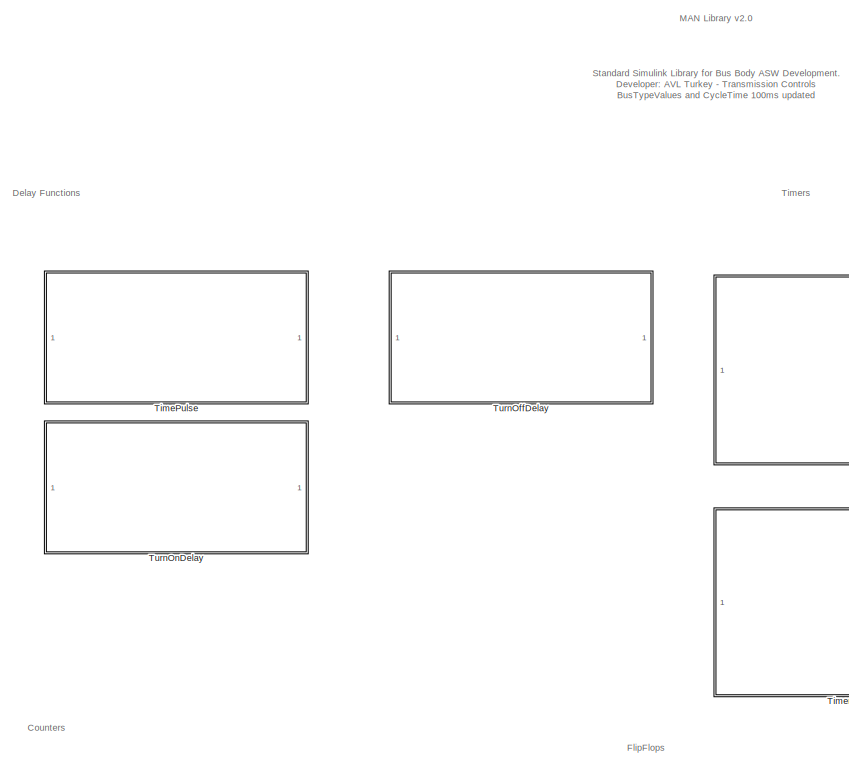
[diagram: root canvas - part 1/4, top left region]
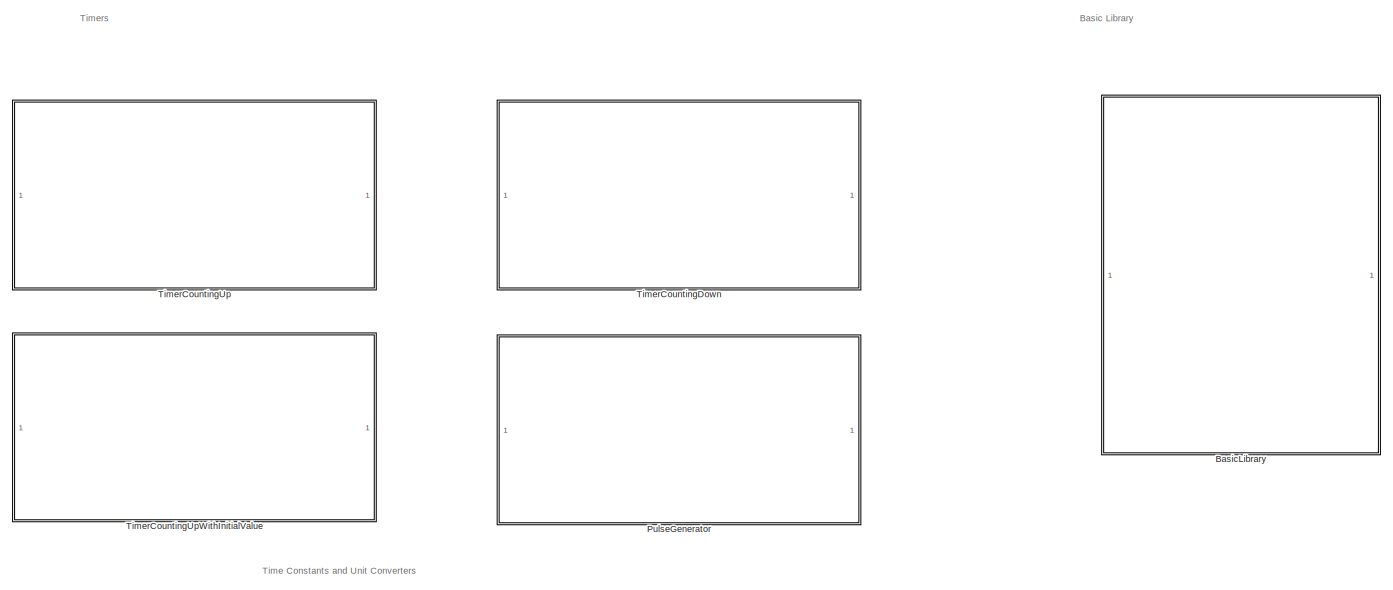
[diagram: root canvas - part 2/4, top right region]
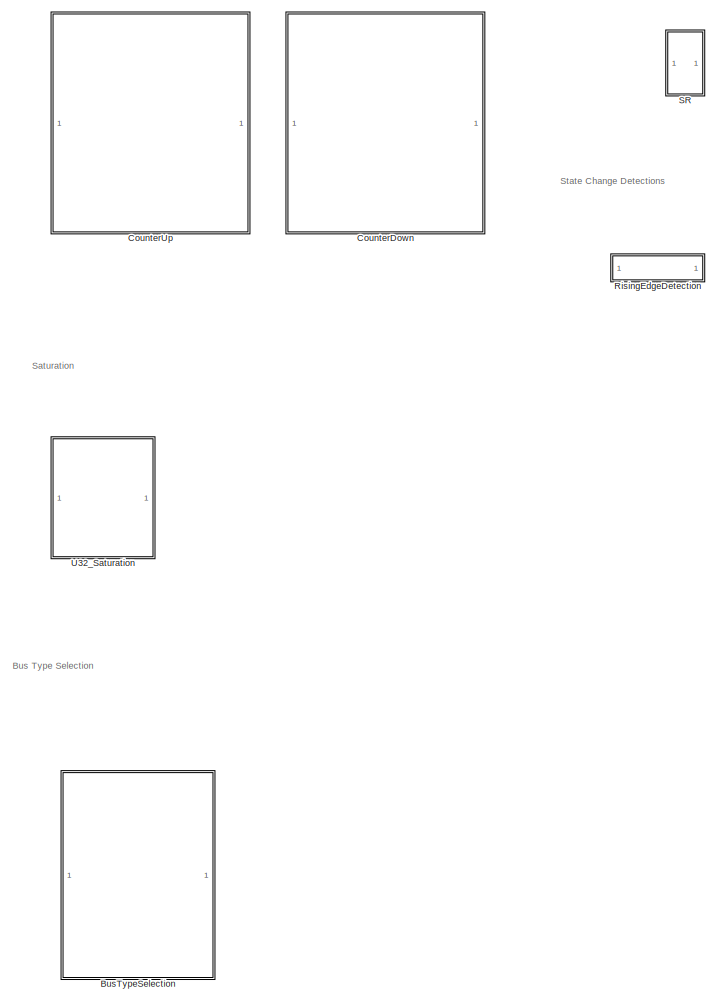
[diagram: root canvas - part 3/4, bottom left region]
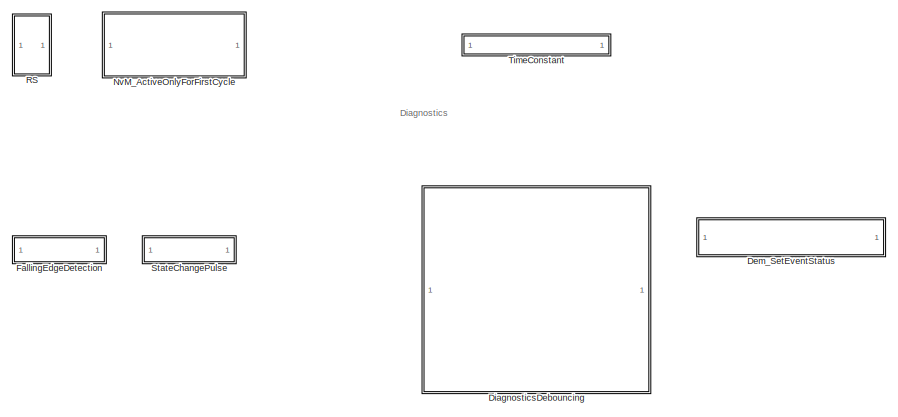
[diagram: root canvas - part 4/4, central region]
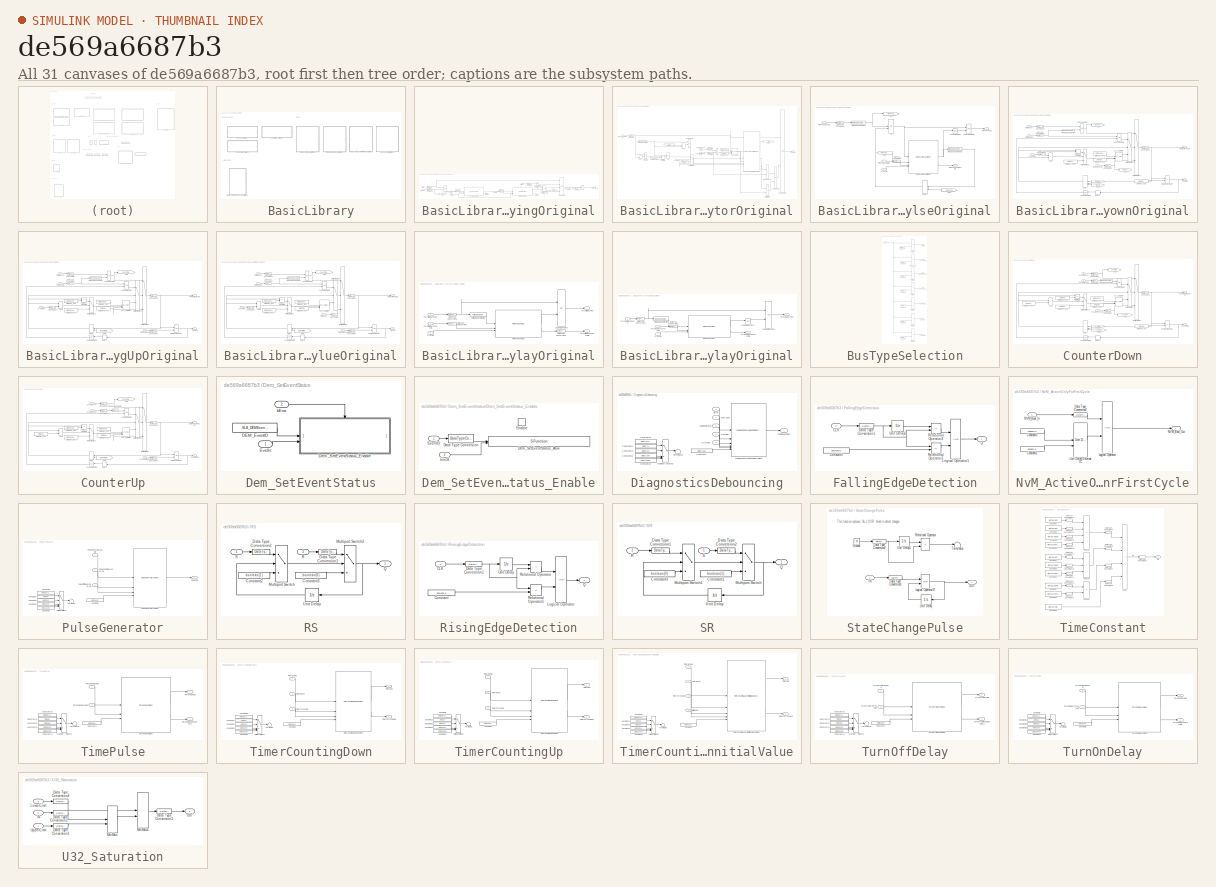
[diagram: thumbnail index - all 31 canvases of the model, root first then tree order]
MODEL slx_de569a6687b3
KIND library
CONFIG AbsTol = auto
CONFIG EnableMultiTasking = on
CONFIG FixedStep = auto
CONFIG MaxStep = auto
CONFIG MinStep = auto
CONFIG RelTol = 1e-3
CONFIG SampleTimeConstraint = Unconstrained
CONFIG SolverName = ode45
CONFIG StartTime = 0.0
CONFIG StopTime = 10.0
BLOCK [SubSystem] BasicLibrary
BLOCK [SubSystem] BasicLibrary/DiagnosticsDebouncingOriginal
BLOCK [Inport] BasicLibrary/DiagnosticsDebouncingOriginal/CycleTime
  Port = 6
BLOCK [DataTypeConversion] BasicLibrary/DiagnosticsDebouncingOriginal/Data Type Conversion1
  OutDataTypeStr = boolean
  RndMeth = Floor
  SaturateOnIntegerOverflow = off
BLOCK [DataTypeConversion] BasicLibrary/DiagnosticsDebouncingOriginal/Data Type Conversion2
  OutDataTypeStr = boolean
  RndMeth = Floor
  SaturateOnIntegerOverflow = off
BLOCK [DataTypeConversion] BasicLibrary/DiagnosticsDebouncingOriginal/Data Type Conversion3
  OutDataTypeStr = boolean
  RndMeth = Floor
  SaturateOnIntegerOverflow = off
BLOCK [DataTypeConversion] BasicLibrary/DiagnosticsDebouncingOriginal/Data Type Conversion4
  OutDataTypeStr = uint32
  RndMeth = Floor
  SaturateOnIntegerOverflow = off
BLOCK [DataTypeConversion] BasicLibrary/DiagnosticsDebouncingOriginal/Data Type Conversion5
  OutDataTypeStr = uint32
  RndMeth = Floor
  SaturateOnIntegerOverflow = off
BLOCK [Outport] BasicLibrary/DiagnosticsDebouncingOriginal/DiagnosticFlag
BLOCK [Inport] BasicLibrary/DiagnosticsDebouncingOriginal/Error
BLOCK [From] BasicLibrary/DiagnosticsDebouncingOriginal/From
  GotoTag = IgnitionStatus
BLOCK [From] BasicLibrary/DiagnosticsDebouncingOriginal/From1
  GotoTag = IgnitionStatus
BLOCK [From] BasicLibrary/DiagnosticsDebouncingOriginal/From2
  GotoTag = ViewError
BLOCK [Goto] BasicLibrary/DiagnosticsDebouncingOriginal/Goto1
  GotoTag = IgnitionStatus
BLOCK [Goto] BasicLibrary/DiagnosticsDebouncingOriginal/Goto2
  GotoTag = ViewError
BLOCK [Inport] BasicLibrary/DiagnosticsDebouncingOriginal/IgnitionStatus
  Port = 3
BLOCK [Logic] BasicLibrary/DiagnosticsDebouncingOriginal/Logical Operator
  AllPortsSameDT = off
  Inputs = 1
  Operator = NOT
  OutDataTypeStr = boolean
BLOCK [Logic] BasicLibrary/DiagnosticsDebouncingOriginal/Logical Operator1
  AllPortsSameDT = off
  Inputs = 4
  OutDataTypeStr = boolean
BLOCK [Logic] BasicLibrary/DiagnosticsDebouncingOriginal/Logical Operator2
  AllPortsSameDT = off
  OutDataTypeStr = boolean
BLOCK [Logic] BasicLibrary/DiagnosticsDebouncingOriginal/Logical Operator3
  AllPortsSameDT = off
  OutDataTypeStr = boolean
BLOCK [Logic] BasicLibrary/DiagnosticsDebouncingOriginal/Logical Operator4
  AllPortsSameDT = off
  Inputs = 1
  Operator = NOT
  OutDataTypeStr = boolean
BLOCK [Inport] BasicLibrary/DiagnosticsDebouncingOriginal/OffDelay
  Port = 5
BLOCK [Inport] BasicLibrary/DiagnosticsDebouncingOriginal/OnDelay
  Port = 4
BLOCK [Reference] BasicLibrary/DiagnosticsDebouncingOriginal/RS  REF=$bdroot/RS
  SourceBlock = $bdroot/RS
  SourceType = SubSystem
BLOCK [Inport] BasicLibrary/DiagnosticsDebouncingOriginal/StartLock
  Port = 2
BLOCK [Terminator] BasicLibrary/DiagnosticsDebouncingOriginal/Terminator
BLOCK [Terminator] BasicLibrary/DiagnosticsDebouncingOriginal/Terminator1
BLOCK [Reference] BasicLibrary/DiagnosticsDebouncingOriginal/TurnOffDelayOriginal   REF=$bdroot/BasicLibrary/TurnOffDelayOriginal
  SourceBlock = $bdroot/BasicLibrary/TurnOffDelayOriginal
  SourceType = SubSystem
BLOCK [Reference] BasicLibrary/DiagnosticsDebouncingOriginal/TurnOnDelayOriginal  REF=$bdroot/BasicLibrary/TurnOnDelayOriginal
  SourceBlock = $bdroot/BasicLibrary/TurnOnDelayOriginal
  SourceType = SubSystem
BLOCK [SubSystem] BasicLibrary/PulseGeneratorOriginal
BLOCK [Inport] BasicLibrary/PulseGeneratorOriginal/CycleTime
  Port = 4
BLOCK [DataTypeConversion] BasicLibrary/PulseGeneratorOriginal/Data Type Conversion1
  OutDataTypeStr = uint32
  RndMeth = Floor
  SaturateOnIntegerOverflow = off
BLOCK [DataTypeConversion] BasicLibrary/PulseGeneratorOriginal/Data Type Conversion2
  OutDataTypeStr = boolean
  RndMeth = Floor
  SaturateOnIntegerOverflow = off
BLOCK [DataTypeConversion] BasicLibrary/PulseGeneratorOriginal/Data Type Conversion3
  OutDataTypeStr = uint32
  RndMeth = Floor
  SaturateOnIntegerOverflow = off
BLOCK [Delay] BasicLibrary/PulseGeneratorOriginal/Delay1
  DelayLength = 1
  ExternalReset = Rising
  InitialCondition = 0
  InputPortMap = u0,r5
BLOCK [Delay] BasicLibrary/PulseGeneratorOriginal/Delay2
  DelayLength = 1
  InitialCondition = 0
  InputPortMap = u0
  NameLocation = top
BLOCK [From] BasicLibrary/PulseGeneratorOriginal/From2
  GotoTag = TotalPeriodExpired
BLOCK [Goto] BasicLibrary/PulseGeneratorOriginal/Goto1
  GotoTag = TotalPeriodExpired
BLOCK [Logic] BasicLibrary/PulseGeneratorOriginal/Logical Operator
  AllPortsSameDT = off
  OutDataTypeStr = boolean
BLOCK [Logic] BasicLibrary/PulseGeneratorOriginal/Logical Operator1
  AllPortsSameDT = off
  Operator = OR
  OutDataTypeStr = boolean
BLOCK [Logic] BasicLibrary/PulseGeneratorOriginal/Logical Operator4
  AllPortsSameDT = off
  Operator = OR
  OutDataTypeStr = boolean
BLOCK [MultiPortSwitch] BasicLibrary/PulseGeneratorOriginal/Multiport Switch1
  DataPortOrder = Zero-based contiguous
  InputSameDT = off
  Inputs = 2
  SaturateOnIntegerOverflow = off
  zeroidx = on
BLOCK [Outport] BasicLibrary/PulseGeneratorOriginal/PulseFlag
BLOCK [Inport] BasicLibrary/PulseGeneratorOriginal/PulseGeneratorEnable
BLOCK [Inport] BasicLibrary/PulseGeneratorOriginal/PulseOffTimeDuration_ms
  Port = 3
BLOCK [Inport] BasicLibrary/PulseGeneratorOriginal/PulseOnTimeDuration_ms
  Port = 2
BLOCK [RelationalOperator] BasicLibrary/PulseGeneratorOriginal/Relational Operator
  InputSameDT = off
  Operator = <
  OutDataTypeStr = boolean
BLOCK [RelationalOperator] BasicLibrary/PulseGeneratorOriginal/Relational Operator1
  InputSameDT = off
  Operator = ==
  OutDataTypeStr = boolean
BLOCK [RelationalOperator] BasicLibrary/PulseGeneratorOriginal/Relational Operator2
  InputSameDT = off
  Operator = ==
  OutDataTypeStr = boolean
BLOCK [RelationalOperator] BasicLibrary/PulseGeneratorOriginal/Relational Operator3
  InputSameDT = off
  Operator = ==
  OutDataTypeStr = boolean
BLOCK [Reference] BasicLibrary/PulseGeneratorOriginal/RisingEdgeDetection  REF=$bdroot/RisingEdgeDetection
  SourceBlock = $bdroot/RisingEdgeDetection
  SourceType = SubSystem
BLOCK [Reference] BasicLibrary/PulseGeneratorOriginal/SR  REF=$bdroot/SR
  SourceBlock = $bdroot/SR
  SourceType = SubSystem
BLOCK [Constant] BasicLibrary/PulseGeneratorOriginal/StartValue_ms1
  OutDataTypeStr = uint32
  Value = uint32(0)
BLOCK [Constant] BasicLibrary/PulseGeneratorOriginal/StartValue_ms3
  OutDataTypeStr = boolean
  Value = boolean(1)
BLOCK [Constant] BasicLibrary/PulseGeneratorOriginal/StartValue_ms4
  OutDataTypeStr = uint32
  Value = uint32(0)
BLOCK [Constant] BasicLibrary/PulseGeneratorOriginal/StartValue_ms5
  OutDataTypeStr = uint32
  Value = uint32(4294967295)
BLOCK [Sum] BasicLibrary/PulseGeneratorOriginal/Sum
  IconShape = rectangular
BLOCK [Reference] BasicLibrary/PulseGeneratorOriginal/TimerCountingUpWithInitialValueOriginal  REF=$bdroot/BasicLibrary/TimerCountingUpWithInitialValueOriginal
  SourceBlock = $bdroot/BasicLibrary/TimerCountingUpWithInitialValueOriginal
  SourceType = SubSystem
BLOCK [Reference] BasicLibrary/PulseGeneratorOriginal/U32_Saturation  REF=$bdroot/U32_Saturation
  SourceBlock = $bdroot/U32_Saturation
  SourceType = SubSystem
BLOCK [SubSystem] BasicLibrary/TimePulseOriginal
BLOCK [Inport] BasicLibrary/TimePulseOriginal/CycleTime
  Port = 3
BLOCK [DataTypeConversion] BasicLibrary/TimePulseOriginal/Data Type Conversion1
  OutDataTypeStr = uint32
  RndMeth = Floor
  SaturateOnIntegerOverflow = off
BLOCK [DataTypeConversion] BasicLibrary/TimePulseOriginal/Data Type Conversion2
  OutDataTypeStr = boolean
  RndMeth = Floor
  SaturateOnIntegerOverflow = off
BLOCK [Delay] BasicLibrary/TimePulseOriginal/Delay1
  DelayLength = 1
  ExternalReset = Rising
  InitialCondition = 0
  InputPortMap = u0,r5
  NameLocation = top
BLOCK [From] BasicLibrary/TimePulseOriginal/From
  GotoTag = TimePulseReset
  NameLocation = top
BLOCK [From] BasicLibrary/TimePulseOriginal/From1
  GotoTag = TimePulseReset
BLOCK [Goto] BasicLibrary/TimePulseOriginal/Goto
  GotoTag = TimePulseReset
  NameLocation = top
BLOCK [Logic] BasicLibrary/TimePulseOriginal/Logical Operator1
  AllPortsSameDT = off
  NameLocation = top
  Operator = NOT
  OutDataTypeStr = boolean
BLOCK [Logic] BasicLibrary/TimePulseOriginal/Logical Operator2
  AllPortsSameDT = off
  OutDataTypeStr = boolean
BLOCK [Reference] BasicLibrary/TimePulseOriginal/RisingEdgeDetection  REF=$bdroot/RisingEdgeDetection
  SourceBlock = $bdroot/RisingEdgeDetection
  SourceType = SubSystem
BLOCK [Reference] BasicLibrary/TimePulseOriginal/RisingEdgeDetection1  REF=$bdroot/RisingEdgeDetection
  SourceBlock = $bdroot/RisingEdgeDetection
  SourceType = SubSystem
BLOCK [Reference] BasicLibrary/TimePulseOriginal/SR  REF=$bdroot/SR
  SourceBlock = $bdroot/SR
  SourceType = SubSystem
BLOCK [Inport] BasicLibrary/TimePulseOriginal/TimePulseDuration
  Port = 2
BLOCK [Inport] BasicLibrary/TimePulseOriginal/TimePulseEnable
BLOCK [Outport] BasicLibrary/TimePulseOriginal/TimePulseExpiredTime
  Port = 2
BLOCK [Outport] BasicLibrary/TimePulseOriginal/TimePulseFlag
BLOCK [Reference] BasicLibrary/TimePulseOriginal/TimerCountingUpOriginal  REF=$bdroot/BasicLibrary/TimerCountingUpOriginal
  SourceBlock = $bdroot/BasicLibrary/TimerCountingUpOriginal
  SourceType = SubSystem
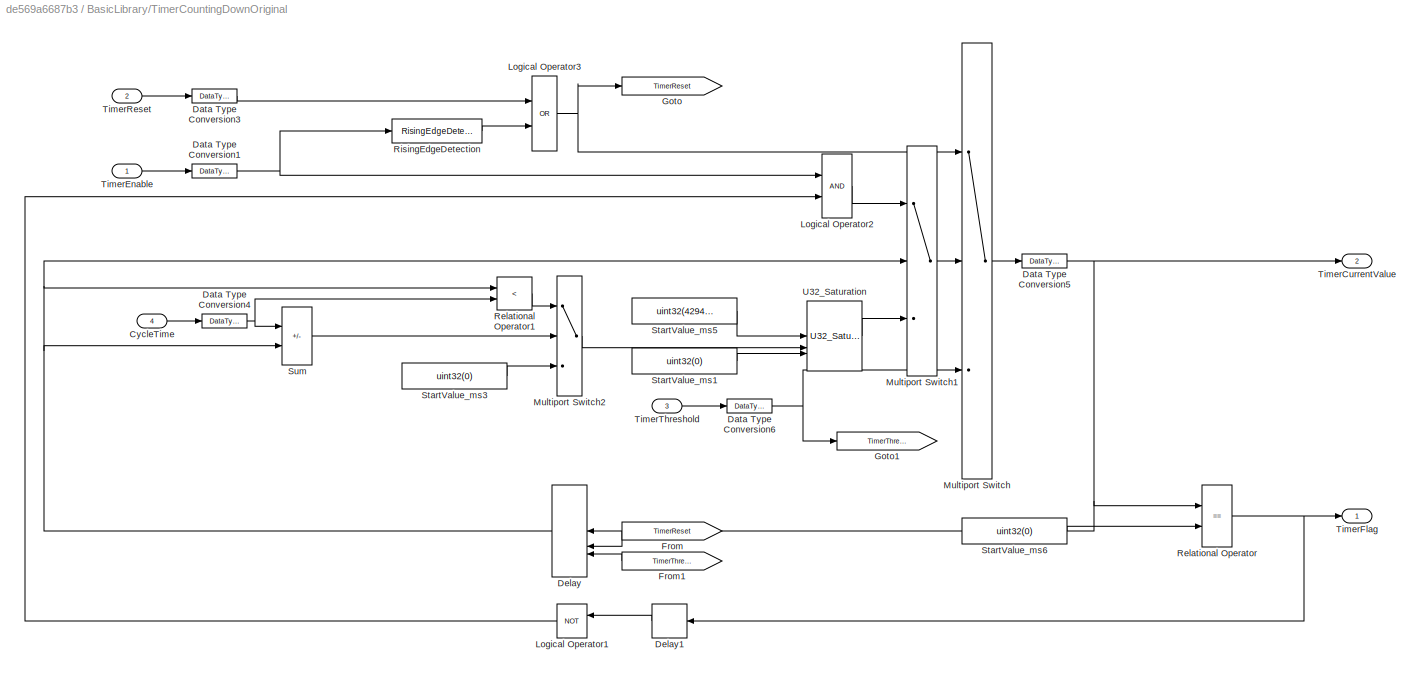
BLOCK [SubSystem] BasicLibrary/TimerCountingDownOriginal
BLOCK [Inport] BasicLibrary/TimerCountingDownOriginal/CycleTime
  Port = 4
BLOCK [DataTypeConversion] BasicLibrary/TimerCountingDownOriginal/Data Type Conversion1
  OutDataTypeStr = boolean
  RndMeth = Floor
  SaturateOnIntegerOverflow = off
BLOCK [DataTypeConversion] BasicLibrary/TimerCountingDownOriginal/Data Type Conversion3
  OutDataTypeStr = boolean
  RndMeth = Floor
  SaturateOnIntegerOverflow = off
BLOCK [DataTypeConversion] BasicLibrary/TimerCountingDownOriginal/Data Type Conversion4
  OutDataTypeStr = uint32
  RndMeth = Floor
  SaturateOnIntegerOverflow = off
BLOCK [DataTypeConversion] BasicLibrary/TimerCountingDownOriginal/Data Type Conversion5
  OutDataTypeStr = uint32
  RndMeth = Floor
  SaturateOnIntegerOverflow = off
BLOCK [DataTypeConversion] BasicLibrary/TimerCountingDownOriginal/Data Type Conversion6
  OutDataTypeStr = uint32
  RndMeth = Floor
  SaturateOnIntegerOverflow = off
BLOCK [Delay] BasicLibrary/TimerCountingDownOriginal/Delay
  DelayLength = 1
  ExternalReset = Rising
  InitialCondition = 0
  InitialConditionSource = Input port
  InputPortMap = u0,r5,p4
  NameLocation = top
BLOCK [Delay] BasicLibrary/TimerCountingDownOriginal/Delay1
  DelayLength = 1
  InitialCondition = 0
  InputPortMap = u0
  NameLocation = top
BLOCK [From] BasicLibrary/TimerCountingDownOriginal/From
  GotoTag = TimerReset
BLOCK [From] BasicLibrary/TimerCountingDownOriginal/From1
  GotoTag = TimerThreshold
BLOCK [Goto] BasicLibrary/TimerCountingDownOriginal/Goto
  GotoTag = TimerReset
BLOCK [Goto] BasicLibrary/TimerCountingDownOriginal/Goto1
  GotoTag = TimerThreshold
BLOCK [Logic] BasicLibrary/TimerCountingDownOriginal/Logical Operator1
  AllPortsSameDT = off
  Operator = NOT
  OutDataTypeStr = boolean
BLOCK [Logic] BasicLibrary/TimerCountingDownOriginal/Logical Operator2
  AllPortsSameDT = off
  OutDataTypeStr = boolean
BLOCK [Logic] BasicLibrary/TimerCountingDownOriginal/Logical Operator3
  AllPortsSameDT = off
  Operator = OR
  OutDataTypeStr = boolean
BLOCK [MultiPortSwitch] BasicLibrary/TimerCountingDownOriginal/Multiport Switch
  DataPortOrder = Zero-based contiguous
  InputSameDT = off
  Inputs = 2
  SaturateOnIntegerOverflow = off
  zeroidx = on
BLOCK [MultiPortSwitch] BasicLibrary/TimerCountingDownOriginal/Multiport Switch1
  DataPortOrder = Zero-based contiguous
  InputSameDT = off
  Inputs = 2
  SaturateOnIntegerOverflow = off
  zeroidx = on
BLOCK [MultiPortSwitch] BasicLibrary/TimerCountingDownOriginal/Multiport Switch2
  DataPortOrder = Zero-based contiguous
  InputSameDT = off
  Inputs = 2
  SaturateOnIntegerOverflow = off
  zeroidx = on
BLOCK [RelationalOperator] BasicLibrary/TimerCountingDownOriginal/Relational Operator
  InputSameDT = off
  Operator = ==
  OutDataTypeStr = boolean
BLOCK [RelationalOperator] BasicLibrary/TimerCountingDownOriginal/Relational Operator1
  InputSameDT = off
  Operator = <
  OutDataTypeStr = boolean
BLOCK [Reference] BasicLibrary/TimerCountingDownOriginal/RisingEdgeDetection  REF=$bdroot/RisingEdgeDetection
  SourceBlock = $bdroot/RisingEdgeDetection
  SourceType = SubSystem
BLOCK [Constant] BasicLibrary/TimerCountingDownOriginal/StartValue_ms1
  OutDataTypeStr = uint32
  Value = uint32(0)
BLOCK [Constant] BasicLibrary/TimerCountingDownOriginal/StartValue_ms3
  OutDataTypeStr = uint32
  Value = uint32(0)
BLOCK [Constant] BasicLibrary/TimerCountingDownOriginal/StartValue_ms5
  OutDataTypeStr = uint32
  Value = uint32(4294967295)
BLOCK [Constant] BasicLibrary/TimerCountingDownOriginal/StartValue_ms6
  OutDataTypeStr = uint32
  Value = uint32(0)
BLOCK [Sum] BasicLibrary/TimerCountingDownOriginal/Sum
  IconShape = rectangular
  Inputs = -+
BLOCK [Outport] BasicLibrary/TimerCountingDownOriginal/TimerCurrentValue
  Port = 2
BLOCK [Inport] BasicLibrary/TimerCountingDownOriginal/TimerEnable
BLOCK [Outport] BasicLibrary/TimerCountingDownOriginal/TimerFlag
BLOCK [Inport] BasicLibrary/TimerCountingDownOriginal/TimerReset
  Port = 2
BLOCK [Inport] BasicLibrary/TimerCountingDownOriginal/TimerThreshold
  Port = 3
BLOCK [Reference] BasicLibrary/TimerCountingDownOriginal/U32_Saturation  REF=$bdroot/U32_Saturation
  SourceBlock = $bdroot/U32_Saturation
  SourceType = SubSystem
BLOCK [SubSystem] BasicLibrary/TimerCountingUpOriginal
BLOCK [Inport] BasicLibrary/TimerCountingUpOriginal/CycleTime
  Port = 4
BLOCK [DataTypeConversion] BasicLibrary/TimerCountingUpOriginal/Data Type Conversion2
  OutDataTypeStr = boolean
  RndMeth = Floor
  SaturateOnIntegerOverflow = off
BLOCK [DataTypeConversion] BasicLibrary/TimerCountingUpOriginal/Data Type Conversion4
  OutDataTypeStr = uint32
  RndMeth = Floor
  SaturateOnIntegerOverflow = off
BLOCK [DataTypeConversion] BasicLibrary/TimerCountingUpOriginal/Data Type Conversion5
  OutDataTypeStr = uint32
  RndMeth = Floor
  SaturateOnIntegerOverflow = off
BLOCK [DataTypeConversion] BasicLibrary/TimerCountingUpOriginal/Data Type Conversion6
  OutDataTypeStr = uint32
  RndMeth = Floor
  SaturateOnIntegerOverflow = off
BLOCK [DataTypeConversion] BasicLibrary/TimerCountingUpOriginal/Data Type Conversion7
  OutDataTypeStr = boolean
  RndMeth = Floor
  SaturateOnIntegerOverflow = off
BLOCK [Delay] BasicLibrary/TimerCountingUpOriginal/Delay
  DelayLength = 1
  ExternalReset = Rising
  InitialCondition = 0
  InputPortMap = u0,r5
  NameLocation = top
BLOCK [Delay] BasicLibrary/TimerCountingUpOriginal/Delay1
  DelayLength = 1
  InitialCondition = 0
  InputPortMap = u0
  NameLocation = top
BLOCK [From] BasicLibrary/TimerCountingUpOriginal/From
  GotoTag = ResetTimer_BOOL
BLOCK [Goto] BasicLibrary/TimerCountingUpOriginal/Goto
  GotoTag = ResetTimer_BOOL
BLOCK [Logic] BasicLibrary/TimerCountingUpOriginal/Logical Operator1
  AllPortsSameDT = off
  Operator = NOT
  OutDataTypeStr = boolean
BLOCK [Logic] BasicLibrary/TimerCountingUpOriginal/Logical Operator2
  AllPortsSameDT = off
  OutDataTypeStr = boolean
BLOCK [Logic] BasicLibrary/TimerCountingUpOriginal/Logical Operator3
  AllPortsSameDT = off
  Operator = OR
  OutDataTypeStr = boolean
BLOCK [MultiPortSwitch] BasicLibrary/TimerCountingUpOriginal/Multiport Switch
  DataPortOrder = Zero-based contiguous
  InputSameDT = off
  Inputs = 2
  SaturateOnIntegerOverflow = off
  zeroidx = on
BLOCK [MultiPortSwitch] BasicLibrary/TimerCountingUpOriginal/Multiport Switch1
  DataPortOrder = Zero-based contiguous
  InputSameDT = off
  Inputs = 2
  SaturateOnIntegerOverflow = off
  zeroidx = on
BLOCK [MultiPortSwitch] BasicLibrary/TimerCountingUpOriginal/Multiport Switch2
  DataPortOrder = Zero-based contiguous
  InputSameDT = off
  Inputs = 2
  SaturateOnIntegerOverflow = off
  zeroidx = on
BLOCK [RelationalOperator] BasicLibrary/TimerCountingUpOriginal/Relational Operator
  InputSameDT = off
  OutDataTypeStr = boolean
BLOCK [RelationalOperator] BasicLibrary/TimerCountingUpOriginal/Relational Operator1
  InputSameDT = off
  Operator = ==
  OutDataTypeStr = boolean
BLOCK [Reference] BasicLibrary/TimerCountingUpOriginal/RisingEdgeDetection  REF=$bdroot/RisingEdgeDetection
  SourceBlock = $bdroot/RisingEdgeDetection
  SourceType = SubSystem
BLOCK [Constant] BasicLibrary/TimerCountingUpOriginal/StartValue_ms1
  OutDataTypeStr = uint32
  Value = uint32(4294967295)
BLOCK [Constant] BasicLibrary/TimerCountingUpOriginal/StartValue_ms2
  OutDataTypeStr = uint32
  Value = uint32(4294967295)
BLOCK [Constant] BasicLibrary/TimerCountingUpOriginal/StartValue_ms3
  OutDataTypeStr = uint32
  Value = uint32(0)
BLOCK [Constant] BasicLibrary/TimerCountingUpOriginal/StartValue_ms5
  OutDataTypeStr = uint32
  Value = uint32(4294967295)
BLOCK [Sum] BasicLibrary/TimerCountingUpOriginal/Sum
  IconShape = rectangular
BLOCK [Outport] BasicLibrary/TimerCountingUpOriginal/TimerCurrentValue
  Port = 2
BLOCK [Inport] BasicLibrary/TimerCountingUpOriginal/TimerEnable
BLOCK [Outport] BasicLibrary/TimerCountingUpOriginal/TimerFlag
BLOCK [Inport] BasicLibrary/TimerCountingUpOriginal/TimerReset
  Port = 2
BLOCK [Inport] BasicLibrary/TimerCountingUpOriginal/TimerThreshold
  Port = 3
BLOCK [Reference] BasicLibrary/TimerCountingUpOriginal/U32_Saturation  REF=$bdroot/U32_Saturation
  SourceBlock = $bdroot/U32_Saturation
  SourceType = SubSystem
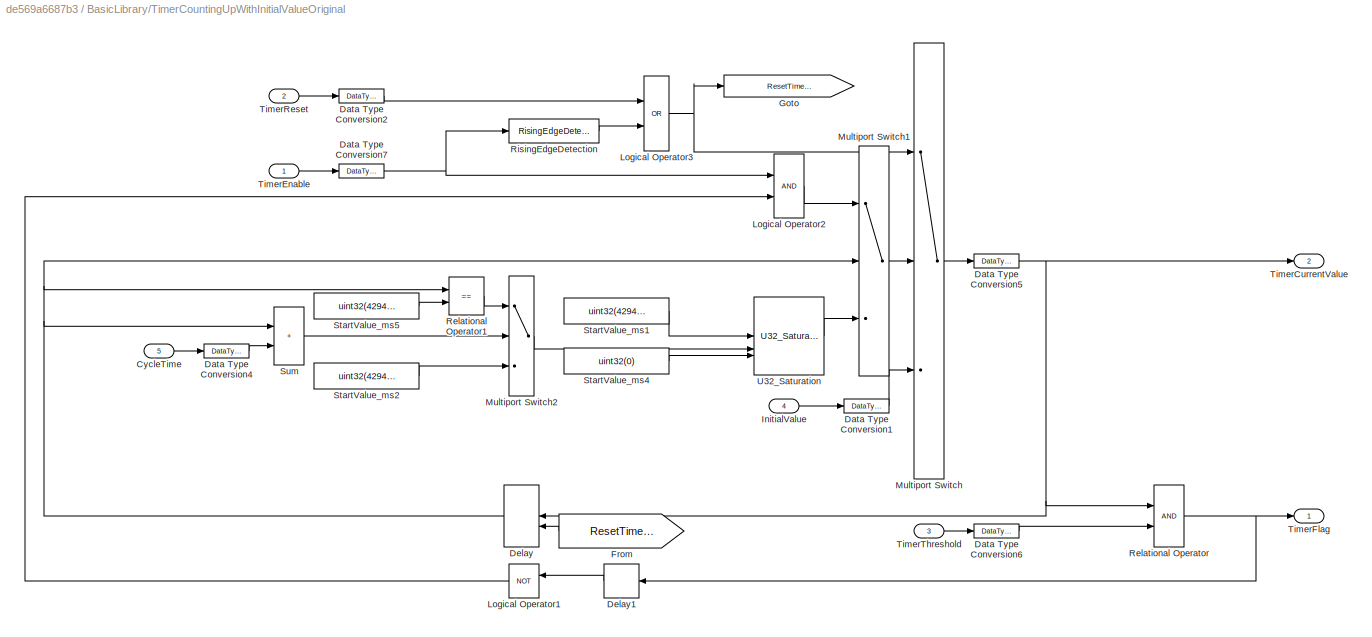
BLOCK [SubSystem] BasicLibrary/TimerCountingUpWithInitialValueOriginal
BLOCK [Inport] BasicLibrary/TimerCountingUpWithInitialValueOriginal/CycleTime
  Port = 5
BLOCK [DataTypeConversion] BasicLibrary/TimerCountingUpWithInitialValueOriginal/Data Type Conversion1
  OutDataTypeStr = uint32
  RndMeth = Floor
  SaturateOnIntegerOverflow = off
BLOCK [DataTypeConversion] BasicLibrary/TimerCountingUpWithInitialValueOriginal/Data Type Conversion2
  OutDataTypeStr = boolean
  RndMeth = Floor
  SaturateOnIntegerOverflow = off
BLOCK [DataTypeConversion] BasicLibrary/TimerCountingUpWithInitialValueOriginal/Data Type Conversion4
  OutDataTypeStr = uint32
  RndMeth = Floor
  SaturateOnIntegerOverflow = off
BLOCK [DataTypeConversion] BasicLibrary/TimerCountingUpWithInitialValueOriginal/Data Type Conversion5
  OutDataTypeStr = uint32
  RndMeth = Floor
  SaturateOnIntegerOverflow = off
BLOCK [DataTypeConversion] BasicLibrary/TimerCountingUpWithInitialValueOriginal/Data Type Conversion6
  OutDataTypeStr = uint32
  RndMeth = Floor
  SaturateOnIntegerOverflow = off
BLOCK [DataTypeConversion] BasicLibrary/TimerCountingUpWithInitialValueOriginal/Data Type Conversion7
  OutDataTypeStr = boolean
  RndMeth = Floor
  SaturateOnIntegerOverflow = off
BLOCK [Delay] BasicLibrary/TimerCountingUpWithInitialValueOriginal/Delay
  DelayLength = 1
  ExternalReset = Rising
  InitialCondition = 0
  InputPortMap = u0,r5
  NameLocation = top
BLOCK [Delay] BasicLibrary/TimerCountingUpWithInitialValueOriginal/Delay1
  DelayLength = 1
  InitialCondition = 0
  InputPortMap = u0
  NameLocation = top
BLOCK [From] BasicLibrary/TimerCountingUpWithInitialValueOriginal/From
  GotoTag = ResetTimer_BOOL
BLOCK [Goto] BasicLibrary/TimerCountingUpWithInitialValueOriginal/Goto
  GotoTag = ResetTimer_BOOL
BLOCK [Inport] BasicLibrary/TimerCountingUpWithInitialValueOriginal/InitialValue
  Port = 4
BLOCK [Logic] BasicLibrary/TimerCountingUpWithInitialValueOriginal/Logical Operator1
  AllPortsSameDT = off
  Operator = NOT
  OutDataTypeStr = boolean
BLOCK [Logic] BasicLibrary/TimerCountingUpWithInitialValueOriginal/Logical Operator2
  AllPortsSameDT = off
  OutDataTypeStr = boolean
BLOCK [Logic] BasicLibrary/TimerCountingUpWithInitialValueOriginal/Logical Operator3
  AllPortsSameDT = off
  Operator = OR
  OutDataTypeStr = boolean
BLOCK [MultiPortSwitch] BasicLibrary/TimerCountingUpWithInitialValueOriginal/Multiport Switch
  DataPortOrder = Zero-based contiguous
  InputSameDT = off
  Inputs = 2
  SaturateOnIntegerOverflow = off
  zeroidx = on
BLOCK [MultiPortSwitch] BasicLibrary/TimerCountingUpWithInitialValueOriginal/Multiport Switch1
  DataPortOrder = Zero-based contiguous
  InputSameDT = off
  Inputs = 2
  SaturateOnIntegerOverflow = off
  zeroidx = on
BLOCK [MultiPortSwitch] BasicLibrary/TimerCountingUpWithInitialValueOriginal/Multiport Switch2
  DataPortOrder = Zero-based contiguous
  InputSameDT = off
  Inputs = 2
  SaturateOnIntegerOverflow = off
  zeroidx = on
BLOCK [RelationalOperator] BasicLibrary/TimerCountingUpWithInitialValueOriginal/Relational Operator
  InputSameDT = off
  OutDataTypeStr = boolean
BLOCK [RelationalOperator] BasicLibrary/TimerCountingUpWithInitialValueOriginal/Relational Operator1
  InputSameDT = off
  Operator = ==
  OutDataTypeStr = boolean
BLOCK [Reference] BasicLibrary/TimerCountingUpWithInitialValueOriginal/RisingEdgeDetection  REF=$bdroot/RisingEdgeDetection
  SourceBlock = $bdroot/RisingEdgeDetection
  SourceType = SubSystem
BLOCK [Constant] BasicLibrary/TimerCountingUpWithInitialValueOriginal/StartValue_ms1
  OutDataTypeStr = uint32
  Value = uint32(4294967295)
BLOCK [Constant] BasicLibrary/TimerCountingUpWithInitialValueOriginal/StartValue_ms2
  OutDataTypeStr = uint32
  Value = uint32(4294967295)
BLOCK [Constant] BasicLibrary/TimerCountingUpWithInitialValueOriginal/StartValue_ms4
  OutDataTypeStr = uint32
  Value = uint32(0)
BLOCK [Constant] BasicLibrary/TimerCountingUpWithInitialValueOriginal/StartValue_ms5
  OutDataTypeStr = uint32
  Value = uint32(4294967295)
BLOCK [Sum] BasicLibrary/TimerCountingUpWithInitialValueOriginal/Sum
  IconShape = rectangular
BLOCK [Outport] BasicLibrary/TimerCountingUpWithInitialValueOriginal/TimerCurrentValue
  Port = 2
BLOCK [Inport] BasicLibrary/TimerCountingUpWithInitialValueOriginal/TimerEnable
BLOCK [Outport] BasicLibrary/TimerCountingUpWithInitialValueOriginal/TimerFlag
BLOCK [Inport] BasicLibrary/TimerCountingUpWithInitialValueOriginal/TimerReset
  Port = 2
BLOCK [Inport] BasicLibrary/TimerCountingUpWithInitialValueOriginal/TimerThreshold
  Port = 3
BLOCK [Reference] BasicLibrary/TimerCountingUpWithInitialValueOriginal/U32_Saturation  REF=$bdroot/U32_Saturation
  SourceBlock = $bdroot/U32_Saturation
  SourceType = SubSystem
BLOCK [SubSystem] BasicLibrary/TurnOffDelayOriginal
BLOCK [Inport] BasicLibrary/TurnOffDelayOriginal/CycleTime
  Port = 3
BLOCK [DataTypeConversion] BasicLibrary/TurnOffDelayOriginal/Data Type Conversion1
  OutDataTypeStr = uint32
  RndMeth = Floor
  SaturateOnIntegerOverflow = off
BLOCK [DataTypeConversion] BasicLibrary/TurnOffDelayOriginal/Data Type Conversion2
  OutDataTypeStr = boolean
  RndMeth = Floor
  SaturateOnIntegerOverflow = off
BLOCK [DataTypeConversion] BasicLibrary/TurnOffDelayOriginal/Data Type Conversion3
  OutDataTypeStr = uint32
  RndMeth = Floor
  SaturateOnIntegerOverflow = off
BLOCK [Reference] BasicLibrary/TurnOffDelayOriginal/FallingEdgeDetection  REF=$bdroot/FallingEdgeDetection
  SourceBlock = $bdroot/FallingEdgeDetection
  SourceType = SubSystem
BLOCK [Logic] BasicLibrary/TurnOffDelayOriginal/Logical Operator2
  AllPortsSameDT = off
  Operator = OR
  OutDataTypeStr = boolean
BLOCK [Reference] BasicLibrary/TurnOffDelayOriginal/TimePulseOriginal  REF=$bdroot/BasicLibrary/TimePulseOriginal
  SourceBlock = $bdroot/BasicLibrary/TimePulseOriginal
  SourceType = SubSystem
BLOCK [Inport] BasicLibrary/TurnOffDelayOriginal/TurnOffDelayEnable
BLOCK [Outport] BasicLibrary/TurnOffDelayOriginal/TurnOffDelayExpiredTime
  Port = 2
BLOCK [Outport] BasicLibrary/TurnOffDelayOriginal/TurnOffDelayFlag
BLOCK [Inport] BasicLibrary/TurnOffDelayOriginal/TurnOffDelayThreshold
  Port = 2
BLOCK [SubSystem] BasicLibrary/TurnOnDelayOriginal
BLOCK [Inport] BasicLibrary/TurnOnDelayOriginal/CycleTime
  Port = 3
BLOCK [DataTypeConversion] BasicLibrary/TurnOnDelayOriginal/Data Type Conversion1
  OutDataTypeStr = uint32
  RndMeth = Floor
  SaturateOnIntegerOverflow = off
BLOCK [DataTypeConversion] BasicLibrary/TurnOnDelayOriginal/Data Type Conversion2
  OutDataTypeStr = boolean
  RndMeth = Floor
  SaturateOnIntegerOverflow = off
BLOCK [Logic] BasicLibrary/TurnOnDelayOriginal/Logical Operator1
  AllPortsSameDT = off
  NameLocation = top
  Operator = NOT
  OutDataTypeStr = boolean
BLOCK [Logic] BasicLibrary/TurnOnDelayOriginal/Logical Operator2
  AllPortsSameDT = off
  OutDataTypeStr = boolean
BLOCK [Reference] BasicLibrary/TurnOnDelayOriginal/RisingEdgeDetection  REF=$bdroot/RisingEdgeDetection
  SourceBlock = $bdroot/RisingEdgeDetection
  SourceType = SubSystem
BLOCK [Reference] BasicLibrary/TurnOnDelayOriginal/TimePulseOriginal  REF=$bdroot/BasicLibrary/TimePulseOriginal
  SourceBlock = $bdroot/BasicLibrary/TimePulseOriginal
  SourceType = SubSystem
BLOCK [Inport] BasicLibrary/TurnOnDelayOriginal/TurnOnDelayEnable
BLOCK [Outport] BasicLibrary/TurnOnDelayOriginal/TurnOnDelayExpiredTime
  Port = 2
BLOCK [Outport] BasicLibrary/TurnOnDelayOriginal/TurnOnDelayFlag
BLOCK [Inport] BasicLibrary/TurnOnDelayOriginal/TurnOnDelayThreshold
  Port = 2
BLOCK [SubSystem] BusTypeSelection
BLOCK [Outport] BusTypeSelection/BusTypCityStep1
BLOCK [Outport] BusTypeSelection/BusTypCityStep2
  Port = 2
BLOCK [Outport] BusTypeSelection/BusTypCoach
  Port = 3
BLOCK [Outport] BusTypeSelection/BusTypElec
  Port = 6
BLOCK [Outport] BusTypeSelection/BusTypIntercity
  Port = 4
BLOCK [Outport] BusTypeSelection/BusTypSky
  Port = 5
BLOCK [Constant] BusTypeSelection/Constant
  Value = uint8(0)
BLOCK [Constant] BusTypeSelection/Constant1
  Value = uint8(1)
BLOCK [Constant] BusTypeSelection/Constant2
  Value = uint8(2)
BLOCK [Constant] BusTypeSelection/Constant3
  Value = uint8(3)
BLOCK [Constant] BusTypeSelection/Constant4
  Value = uint8(4)
BLOCK [Constant] BusTypeSelection/Constant5
  Value = uint8(5)
BLOCK [Constant] BusTypeSelection/Constant6
  Value = uint8(6)
BLOCK [Inport] BusTypeSelection/GW_BusTyp
BLOCK [RelationalOperator] BusTypeSelection/Relational Operator
  InputSameDT = off
  Operator = ==
  OutDataTypeStr = boolean
BLOCK [RelationalOperator] BusTypeSelection/Relational Operator1
  InputSameDT = off
  Operator = ==
  OutDataTypeStr = boolean
BLOCK [RelationalOperator] BusTypeSelection/Relational Operator2
  InputSameDT = off
  Operator = ==
  OutDataTypeStr = boolean
BLOCK [RelationalOperator] BusTypeSelection/Relational Operator3
  InputSameDT = off
  Operator = ==
  OutDataTypeStr = boolean
BLOCK [RelationalOperator] BusTypeSelection/Relational Operator4
  InputSameDT = off
  Operator = ==
  OutDataTypeStr = boolean
BLOCK [RelationalOperator] BusTypeSelection/Relational Operator5
  InputSameDT = off
  Operator = ==
  OutDataTypeStr = boolean
BLOCK [RelationalOperator] BusTypeSelection/Relational Operator6
  InputSameDT = off
  Operator = ==
  OutDataTypeStr = boolean
BLOCK [Terminator] BusTypeSelection/Terminator
BLOCK [SubSystem] CounterDown
BLOCK [Outport] CounterDown/CounterCurrentValue
  Port = 2
BLOCK [Inport] CounterDown/CounterEnable
BLOCK [Outport] CounterDown/CounterFlag
BLOCK [Inport] CounterDown/CounterReset
  Port = 2
BLOCK [Inport] CounterDown/CounterThreshold
  Port = 3
BLOCK [DataTypeConversion] CounterDown/Data Type Conversion1
  OutDataTypeStr = boolean
  RndMeth = Floor
  SaturateOnIntegerOverflow = off
BLOCK [DataTypeConversion] CounterDown/Data Type Conversion3
  OutDataTypeStr = boolean
  RndMeth = Floor
  SaturateOnIntegerOverflow = off
BLOCK [DataTypeConversion] CounterDown/Data Type Conversion5
  OutDataTypeStr = uint32
  RndMeth = Floor
  SaturateOnIntegerOverflow = off
BLOCK [DataTypeConversion] CounterDown/Data Type Conversion6
  OutDataTypeStr = uint32
  RndMeth = Floor
  SaturateOnIntegerOverflow = off
BLOCK [Delay] CounterDown/Delay
  DelayLength = 1
  ExternalReset = Rising
  InitialCondition = 0
  InitialConditionSource = Input port
  InputPortMap = u0,r5,p4
  NameLocation = top
BLOCK [Delay] CounterDown/Delay1
  DelayLength = 1
  InitialCondition = 0
  InputPortMap = u0
  NameLocation = top
BLOCK [From] CounterDown/From
  GotoTag = CounterReset
BLOCK [From] CounterDown/From1
  GotoTag = CounterThreshold
BLOCK [Goto] CounterDown/Goto
  GotoTag = CounterReset
BLOCK [Goto] CounterDown/Goto1
  GotoTag = CounterThreshold
BLOCK [Logic] CounterDown/Logical Operator1
  AllPortsSameDT = off
  Operator = NOT
  OutDataTypeStr = boolean
BLOCK [Logic] CounterDown/Logical Operator2
  AllPortsSameDT = off
  OutDataTypeStr = boolean
BLOCK [MultiPortSwitch] CounterDown/Multiport Switch
  DataPortOrder = Zero-based contiguous
  InputSameDT = off
  Inputs = 2
  SaturateOnIntegerOverflow = off
  zeroidx = on
BLOCK [MultiPortSwitch] CounterDown/Multiport Switch1
  DataPortOrder = Zero-based contiguous
  InputSameDT = off
  Inputs = 2
  SaturateOnIntegerOverflow = off
  zeroidx = on
BLOCK [MultiPortSwitch] CounterDown/Multiport Switch2
  DataPortOrder = Zero-based contiguous
  InputSameDT = off
  Inputs = 2
  SaturateOnIntegerOverflow = off
  zeroidx = on
BLOCK [RelationalOperator] CounterDown/Relational Operator
  InputSameDT = off
  Operator = ==
  OutDataTypeStr = boolean
BLOCK [RelationalOperator] CounterDown/Relational Operator2
  InputSameDT = off
  Operator = ==
  OutDataTypeStr = boolean
BLOCK [Reference] CounterDown/RisingEdgeDetection  REF=$bdroot/RisingEdgeDetection
  SourceBlock = $bdroot/RisingEdgeDetection
  SourceType = SubSystem
BLOCK [Constant] CounterDown/StartValue_ms1
  OutDataTypeStr = uint32
  Value = uint32(0)
BLOCK [Constant] CounterDown/StartValue_ms2
  OutDataTypeStr = uint32
  Value = uint32(0)
BLOCK [Constant] CounterDown/StartValue_ms5
  OutDataTypeStr = uint32
  Value = uint32(0)
BLOCK [Constant] CounterDown/StartValue_ms6
  OutDataTypeStr = uint32
  Value = uint32(0)
BLOCK [Constant] CounterDown/StartValue_ms7
  OutDataTypeStr = uint32
  Value = uint32(4294967295)
BLOCK [Constant] CounterDown/StartValue_ms8
  OutDataTypeStr = uint32
  Value = uint32(1)
BLOCK [Sum] CounterDown/Sum
  IconShape = rectangular
  Inputs = +-
BLOCK [Reference] CounterDown/U32_Saturation  REF=$bdroot/U32_Saturation
  SourceBlock = $bdroot/U32_Saturation
  SourceType = SubSystem
BLOCK [SubSystem] CounterUp
BLOCK [Inport] CounterUp/CounterEnable
BLOCK [Outport] CounterUp/CounterFlag
BLOCK [Inport] CounterUp/CounterLimitValue
  Port = 3
BLOCK [Inport] CounterUp/CounterReset
  Port = 2
BLOCK [Outport] CounterUp/CurrentCounterValue
  Port = 2
BLOCK [DataTypeConversion] CounterUp/Data Type Conversion1
  OutDataTypeStr = boolean
  RndMeth = Floor
  SaturateOnIntegerOverflow = off
BLOCK [DataTypeConversion] CounterUp/Data Type Conversion3
  OutDataTypeStr = boolean
  RndMeth = Floor
  SaturateOnIntegerOverflow = off
BLOCK [DataTypeConversion] CounterUp/Data Type Conversion5
  OutDataTypeStr = uint32
  RndMeth = Floor
  SaturateOnIntegerOverflow = off
BLOCK [DataTypeConversion] CounterUp/Data Type Conversion6
  OutDataTypeStr = uint32
  RndMeth = Floor
  SaturateOnIntegerOverflow = off
BLOCK [Delay] CounterUp/Delay
  DelayLength = 1
  ExternalReset = Rising
  InitialCondition = 0
  InputPortMap = u0,r5
  NameLocation = top
BLOCK [Delay] CounterUp/Delay1
  DelayLength = 1
  InitialCondition = 0
  InputPortMap = u0
  NameLocation = top
BLOCK [From] CounterUp/From
  GotoTag = ResetTimer_BOOL
BLOCK [Goto] CounterUp/Goto
  GotoTag = ResetTimer_BOOL
BLOCK [Logic] CounterUp/Logical Operator1
  AllPortsSameDT = off
  Operator = NOT
  OutDataTypeStr = boolean
BLOCK [Logic] CounterUp/Logical Operator2
  AllPortsSameDT = off
  OutDataTypeStr = boolean
BLOCK [MultiPortSwitch] CounterUp/Multiport Switch
  DataPortOrder = Zero-based contiguous
  InputSameDT = off
  Inputs = 2
  SaturateOnIntegerOverflow = off
  zeroidx = on
BLOCK [MultiPortSwitch] CounterUp/Multiport Switch1
  DataPortOrder = Zero-based contiguous
  InputSameDT = off
  Inputs = 2
  SaturateOnIntegerOverflow = off
  zeroidx = on
BLOCK [MultiPortSwitch] CounterUp/Multiport Switch2
  DataPortOrder = Zero-based contiguous
  InputSameDT = off
  Inputs = 2
  SaturateOnIntegerOverflow = off
  zeroidx = on
BLOCK [RelationalOperator] CounterUp/Relational Operator
  InputSameDT = off
  OutDataTypeStr = boolean
BLOCK [RelationalOperator] CounterUp/Relational Operator1
  InputSameDT = off
  Operator = ==
  OutDataTypeStr = boolean
BLOCK [Reference] CounterUp/RisingEdgeDetection  REF=$bdroot/RisingEdgeDetection
  SourceBlock = $bdroot/RisingEdgeDetection
  SourceType = SubSystem
BLOCK [Constant] CounterUp/StartValue_ms1
  OutDataTypeStr = uint32
  Value = uint32(4294967295)
BLOCK [Constant] CounterUp/StartValue_ms2
  OutDataTypeStr = uint32
  Value = uint32(4294967295)
BLOCK [Constant] CounterUp/StartValue_ms3
  OutDataTypeStr = uint32
  Value = uint32(1)
BLOCK [Constant] CounterUp/StartValue_ms5
  OutDataTypeStr = uint32
  Value = uint32(0)
BLOCK [Constant] CounterUp/StartValue_ms6
  OutDataTypeStr = uint32
  Value = uint32(4294967295)
BLOCK [Sum] CounterUp/Sum
  IconShape = rectangular
BLOCK [Reference] CounterUp/U32_Saturation  REF=$bdroot/U32_Saturation
  SourceBlock = $bdroot/U32_Saturation
  SourceType = SubSystem
BLOCK [SubSystem] Dem_SetEventStatus
BLOCK [Constant] Dem_SetEventStatus/DEM_EventID
  SampleTime = -1
  Value = SLB_DEMEventID
BLOCK [SubSystem] Dem_SetEventStatus/Dem_SetEventStatus_Enable
BLOCK [DataTypeConversion] Dem_SetEventStatus/Dem_SetEventStatus_Enable/Data Type Conversion
  RndMeth = Floor
  SaturateOnIntegerOverflow = off
BLOCK [S-Function] Dem_SetEventStatus/Dem_SetEventStatus_Enable/Dem_SetEventStatus_Asw
  EnableBusSupport = off
  FunctionName = Dem_SetEventStatus_Asw_SF
  SFcnIsStateOwnerBlock = off
  SFunctionDeploymentMode = off
BLOCK [EnablePort] Dem_SetEventStatus/Dem_SetEventStatus_Enable/Enable
BLOCK [Inport] Dem_SetEventStatus/Dem_SetEventStatus_Enable/EveSt
  Port = 2
BLOCK [Inport] Dem_SetEventStatus/Dem_SetEventStatus_Enable/EventID
BLOCK [Inport] Dem_SetEventStatus/EveSt
BLOCK [Inport] Dem_SetEventStatus/bEna
  Port = 2
BLOCK [SubSystem] DiagnosticsDebouncing
BLOCK [Constant] DiagnosticsDebouncing/Constant1
  OutDataTypeStr = uint32
  Value = uint32(100)
BLOCK [Constant] DiagnosticsDebouncing/Constant10
  OutDataTypeStr = uint32
  Value = uint32(CycleTime)
BLOCK [Constant] DiagnosticsDebouncing/Constant11
  OutDataTypeStr = uint32
  Value = uint32(1)
BLOCK [Constant] DiagnosticsDebouncing/Constant12
  OutDataTypeStr = uint32
  Value = uint32(10)
BLOCK [Constant] DiagnosticsDebouncing/Constant13
  OutDataTypeStr = uint32
  Value = uint32(100)
BLOCK [Constant] DiagnosticsDebouncing/Constant14
  OutDataTypeStr = uint32
  Value = uint32(1000)
BLOCK [Outport] DiagnosticsDebouncing/DiagnosticFlag
BLOCK [Reference] DiagnosticsDebouncing/DiagnosticsDebouncingOriginal  REF=$bdroot/BasicLibrary/DiagnosticsDebouncingOriginal
  SourceBlock = $bdroot/BasicLibrary/DiagnosticsDebouncingOriginal
  SourceType = SubSystem
BLOCK [Inport] DiagnosticsDebouncing/Error
BLOCK [Inport] DiagnosticsDebouncing/IgnitionStatus
  Port = 3
BLOCK [MultiPortSwitch] DiagnosticsDebouncing/Multiport Switch2
  InputSameDT = off
  Inputs = 4
  SaturateOnIntegerOverflow = off
BLOCK [Inport] DiagnosticsDebouncing/OffDelay
  Port = 5
BLOCK [Inport] DiagnosticsDebouncing/OnDelay
  Port = 4
BLOCK [Inport] DiagnosticsDebouncing/StartLock
  Port = 2
BLOCK [Terminator] DiagnosticsDebouncing/Terminator
BLOCK [SubSystem] FallingEdgeDetection
BLOCK [Inport] FallingEdgeDetection/CLK
BLOCK [Constant] FallingEdgeDetection/Constant
  OutDataTypeStr = boolean
  Value = boolean(0)
BLOCK [DataTypeConversion] FallingEdgeDetection/Data Type Conversion1
  OutDataTypeStr = boolean
  RndMeth = Floor
  SaturateOnIntegerOverflow = off
BLOCK [Logic] FallingEdgeDetection/Logical Operator1
  AllPortsSameDT = off
  OutDataTypeStr = boolean
BLOCK [Outport] FallingEdgeDetection/Q
BLOCK [RelationalOperator] FallingEdgeDetection/Relational Operator2
  InputSameDT = off
  Operator = ~=
  OutDataTypeStr = boolean
BLOCK [RelationalOperator] FallingEdgeDetection/Relational Operator3
  InputSameDT = off
  Operator = ==
  OutDataTypeStr = boolean
BLOCK [UnitDelay] FallingEdgeDetection/Unit Delay1
  HasFrameUpgradeWarning = on
  SampleTime = -1
BLOCK [SubSystem] NvM_ActiveOnlyForFirstCycle
BLOCK [Constant] NvM_ActiveOnlyForFirstCycle/Constant2
  OutDataTypeStr = boolean
  Value = boolean(1)
BLOCK [Constant] NvM_ActiveOnlyForFirstCycle/Constant3
  OutDataTypeStr = boolean
  Value = boolean(0)
BLOCK [DataTypeConversion] NvM_ActiveOnlyForFirstCycle/Data Type Conversion2
  OutDataTypeStr = boolean
  RndMeth = Floor
  SaturateOnIntegerOverflow = off
BLOCK [Logic] NvM_ActiveOnlyForFirstCycle/Logical Operator
  AllPortsSameDT = off
  OutDataTypeStr = boolean
BLOCK [Inport] NvM_ActiveOnlyForFirstCycle/NVM_Bool_In
BLOCK [Outport] NvM_ActiveOnlyForFirstCycle/NVM_Bool_Out
BLOCK [Reference] NvM_ActiveOnlyForFirstCycle/Unit Delay External IC  REF=simulink_need_slupdate/Unit Delay
External IC
  SourceBlock = simulink_need_slupdate/Unit Delay\nExternal IC
  SourceType = Unit Delay External Initial Condition
BLOCK [SubSystem] PulseGenerator
BLOCK [Constant] PulseGenerator/Constant1
  OutDataTypeStr = uint32
  Value = uint32(100)
BLOCK [Constant] PulseGenerator/Constant10
  OutDataTypeStr = uint32
  Value = uint32(CycleTime)
BLOCK [Constant] PulseGenerator/Constant11
  OutDataTypeStr = uint32
  Value = uint32(1)
BLOCK [Constant] PulseGenerator/Constant12
  OutDataTypeStr = uint32
  Value = uint32(10)
BLOCK [Constant] PulseGenerator/Constant13
  OutDataTypeStr = uint32
  Value = uint32(100)
BLOCK [Constant] PulseGenerator/Constant14
  OutDataTypeStr = uint32
  Value = uint32(1000)
BLOCK [MultiPortSwitch] PulseGenerator/Multiport Switch2
  InputSameDT = off
  Inputs = 4
  SaturateOnIntegerOverflow = off
BLOCK [Outport] PulseGenerator/PulseFlag
BLOCK [Inport] PulseGenerator/PulseGeneratorEnable
BLOCK [Reference] PulseGenerator/PulseGeneratorOriginal  REF=$bdroot/BasicLibrary/PulseGeneratorOriginal
  SourceBlock = $bdroot/BasicLibrary/PulseGeneratorOriginal
  SourceType = SubSystem
BLOCK [Inport] PulseGenerator/PulseOffTimeDuration_ms
  Port = 3
BLOCK [Inport] PulseGenerator/PulseOnTimeDuration_ms
  Port = 2
BLOCK [Terminator] PulseGenerator/Terminator
BLOCK [SubSystem] RS
BLOCK [Constant] RS/Constant2
  OutDataTypeStr = boolean
  Value = boolean(1)
BLOCK [Constant] RS/Constant3
  OutDataTypeStr = boolean
  Value = boolean(0)
BLOCK [DataTypeConversion] RS/Data Type Conversion1
  OutDataTypeStr = boolean
  RndMeth = Floor
  SaturateOnIntegerOverflow = off
BLOCK [DataTypeConversion] RS/Data Type Conversion2
  OutDataTypeStr = boolean
  RndMeth = Floor
  SaturateOnIntegerOverflow = off
BLOCK [MultiPortSwitch] RS/Multiport Switch
  DataPortOrder = Zero-based contiguous
  InputSameDT = off
  Inputs = 2
  SaturateOnIntegerOverflow = off
  zeroidx = on
BLOCK [MultiPortSwitch] RS/Multiport Switch2
  DataPortOrder = Zero-based contiguous
  InputSameDT = off
  Inputs = 2
  SaturateOnIntegerOverflow = off
  zeroidx = on
BLOCK [Outport] RS/Q
BLOCK [Inport] RS/R
  Port = 2
BLOCK [Inport] RS/S
BLOCK [UnitDelay] RS/Unit Delay
  HasFrameUpgradeWarning = on
  SampleTime = -1
BLOCK [SubSystem] RisingEdgeDetection
BLOCK [Inport] RisingEdgeDetection/CLK
BLOCK [Constant] RisingEdgeDetection/Constant
  OutDataTypeStr = boolean
  Value = boolean(1)
BLOCK [DataTypeConversion] RisingEdgeDetection/Data Type Conversion1
  OutDataTypeStr = boolean
  RndMeth = Floor
  SaturateOnIntegerOverflow = off
BLOCK [Logic] RisingEdgeDetection/Logical Operator
  AllPortsSameDT = off
  OutDataTypeStr = boolean
BLOCK [Outport] RisingEdgeDetection/Q
BLOCK [RelationalOperator] RisingEdgeDetection/Relational Operator
  InputSameDT = off
  Operator = ~=
  OutDataTypeStr = boolean
BLOCK [RelationalOperator] RisingEdgeDetection/Relational Operator1
  InputSameDT = off
  Operator = ==
  OutDataTypeStr = boolean
BLOCK [UnitDelay] RisingEdgeDetection/Unit Delay
  HasFrameUpgradeWarning = on
  SampleTime = -1
BLOCK [SubSystem] SR
BLOCK [Constant] SR/Constant1
  OutDataTypeStr = boolean
  Value = boolean(1)
BLOCK [Constant] SR/Constant3
  OutDataTypeStr = boolean
  Value = boolean(0)
BLOCK [DataTypeConversion] SR/Data Type Conversion1
  OutDataTypeStr = boolean
  RndMeth = Floor
  SaturateOnIntegerOverflow = off
BLOCK [DataTypeConversion] SR/Data Type Conversion2
  OutDataTypeStr = boolean
  RndMeth = Floor
  SaturateOnIntegerOverflow = off
BLOCK [MultiPortSwitch] SR/Multiport Switch
  DataPortOrder = Zero-based contiguous
  InputSameDT = off
  Inputs = 2
  SaturateOnIntegerOverflow = off
  zeroidx = on
BLOCK [MultiPortSwitch] SR/Multiport Switch1
  DataPortOrder = Zero-based contiguous
  InputSameDT = off
  Inputs = 2
  SaturateOnIntegerOverflow = off
  zeroidx = on
BLOCK [Outport] SR/Q
BLOCK [Inport] SR/R
  Port = 2
BLOCK [Inport] SR/S
BLOCK [UnitDelay] SR/Unit Delay
  HasFrameUpgradeWarning = on
  SampleTime = -1
BLOCK [SubSystem] StateChangePulse
BLOCK [DataTypeConversion] StateChangePulse/Data Type Conversion1
  OutDataTypeStr = boolean
  RndMeth = Floor
  SaturateOnIntegerOverflow = off
BLOCK [DataTypeConversion] StateChangePulse/Data Type Conversion2
  Commented = on
  OutDataTypeStr = boolean
  RndMeth = Floor
  SaturateOnIntegerOverflow = off
BLOCK [Ground] StateChangePulse/Ground
  Commented = on
BLOCK [Inport] StateChangePulse/IN
BLOCK [Logic] StateChangePulse/Logical Operator17
  AllPortsSameDT = off
  Operator = XOR
  OutDataTypeStr = boolean
BLOCK [Outport] StateChangePulse/OUT
BLOCK [RelationalOperator] StateChangePulse/Relational Operator
  Commented = on
  InputSameDT = off
  Operator = ~=
  OutDataTypeStr = boolean
BLOCK [Terminator] StateChangePulse/Terminator
  Commented = on
BLOCK [UnitDelay] StateChangePulse/Unit Delay
  HasFrameUpgradeWarning = on
  SampleTime = -1
BLOCK [UnitDelay] StateChangePulse/Unit Delay1
  Commented = on
  HasFrameUpgradeWarning = on
  NameLocation = top
  SampleTime = -1
BLOCK [SubSystem] TimeConstant
BLOCK [Constant] TimeConstant/Constant11
  OutDataTypeStr = uint32
  Value = uint32(hours)
BLOCK [Constant] TimeConstant/Constant12
  OutDataTypeStr = uint32
  Value = uint32(minutes)
BLOCK [Constant] TimeConstant/Constant13
  OutDataTypeStr = uint32
  Value = uint32(miliseconds)
BLOCK [Constant] TimeConstant/Constant14
  OutDataTypeStr = uint32
  Value = uint32(60)
BLOCK [Constant] TimeConstant/Constant15
  OutDataTypeStr = uint32
  Value = uint32(1000)
BLOCK [Constant] TimeConstant/Constant16
  OutDataTypeStr = uint32
  Value = uint32(seconds)
BLOCK [Constant] TimeConstant/Constant17
  OutDataTypeStr = uint32
  Value = uint32(1000)
BLOCK [Constant] TimeConstant/Constant7
  OutDataTypeStr = uint32
  Value = uint32(60)
BLOCK [Constant] TimeConstant/Constant8
  OutDataTypeStr = uint32
  Value = uint32(60)
BLOCK [Constant] TimeConstant/Constant9
  OutDataTypeStr = uint32
  Value = uint32(1000)
BLOCK [DataTypeConversion] TimeConstant/Data Type Conversion1
  OutDataTypeStr = uint32
  RndMeth = Floor
  SaturateOnIntegerOverflow = off
BLOCK [DataTypeConversion] TimeConstant/Data Type Conversion13
  OutDataTypeStr = uint32
  RndMeth = Floor
  SaturateOnIntegerOverflow = off
BLOCK [DataTypeConversion] TimeConstant/Data Type Conversion14
  OutDataTypeStr = uint32
  RndMeth = Floor
  SaturateOnIntegerOverflow = off
BLOCK [DataTypeConversion] TimeConstant/Data Type Conversion15
  OutDataTypeStr = uint32
  RndMeth = Floor
  SaturateOnIntegerOverflow = off
BLOCK [DataTypeConversion] TimeConstant/Data Type Conversion16
  OutDataTypeStr = uint32
  RndMeth = Floor
  SaturateOnIntegerOverflow = off
BLOCK [DataTypeConversion] TimeConstant/Data Type Conversion17
  OutDataTypeStr = uint32
  RndMeth = Floor
  SaturateOnIntegerOverflow = off
BLOCK [DataTypeConversion] TimeConstant/Data Type Conversion18
  OutDataTypeStr = uint32
  RndMeth = Floor
  SaturateOnIntegerOverflow = off
BLOCK [DataTypeConversion] TimeConstant/Data Type Conversion19
  OutDataTypeStr = uint32
  RndMeth = Floor
  SaturateOnIntegerOverflow = off
BLOCK [DataTypeConversion] TimeConstant/Data Type Conversion2
  OutDataTypeStr = uint32
  RndMeth = Floor
  SaturateOnIntegerOverflow = off
BLOCK [DataTypeConversion] TimeConstant/Data Type Conversion4
  OutDataTypeStr = uint32
  RndMeth = Floor
  SaturateOnIntegerOverflow = off
BLOCK [DataTypeConversion] TimeConstant/Data Type Conversion5
  OutDataTypeStr = uint32
  RndMeth = Floor
  SaturateOnIntegerOverflow = off
BLOCK [DataTypeConversion] TimeConstant/Data Type Conversion6
  OutDataTypeStr = uint32
  RndMeth = Floor
  SaturateOnIntegerOverflow = off
BLOCK [DataTypeConversion] TimeConstant/Data Type Conversion7
  OutDataTypeStr = uint32
  RndMeth = Floor
  SaturateOnIntegerOverflow = off
BLOCK [DataTypeConversion] TimeConstant/Data Type Conversion8
  OutDataTypeStr = uint32
  RndMeth = Floor
  SaturateOnIntegerOverflow = off
BLOCK [Product] TimeConstant/Product1
  Inputs = 4
  OutDataTypeStr = uint32
BLOCK [Product] TimeConstant/Product2
  Inputs = 3
  OutDataTypeStr = uint32
BLOCK [Product] TimeConstant/Product4
  OutDataTypeStr = uint32
BLOCK [Sum] TimeConstant/Sum1
  AccumDataTypeStr = uint32
  IconShape = rectangular
  Inputs = ++++
BLOCK [Outport] TimeConstant/time
BLOCK [SubSystem] TimePulse
BLOCK [Constant] TimePulse/Constant1
  OutDataTypeStr = uint32
  Value = uint32(100)
BLOCK [Constant] TimePulse/Constant10
  OutDataTypeStr = uint32
  Value = uint32(CycleTime)
BLOCK [Constant] TimePulse/Constant11
  OutDataTypeStr = uint32
  Value = uint32(1)
BLOCK [Constant] TimePulse/Constant12
  OutDataTypeStr = uint32
  Value = uint32(10)
BLOCK [Constant] TimePulse/Constant13
  OutDataTypeStr = uint32
  Value = uint32(100)
BLOCK [Constant] TimePulse/Constant14
  OutDataTypeStr = uint32
  Value = uint32(1000)
BLOCK [MultiPortSwitch] TimePulse/Multiport Switch2
  InputSameDT = off
  Inputs = 4
  SaturateOnIntegerOverflow = off
BLOCK [Terminator] TimePulse/Terminator
BLOCK [Inport] TimePulse/TimePulseDuration
  Port = 2
BLOCK [Inport] TimePulse/TimePulseEnable
BLOCK [Outport] TimePulse/TimePulseExpiredTime
  Port = 2
BLOCK [Outport] TimePulse/TimePulseFlag
BLOCK [Reference] TimePulse/TimePulseOriginal  REF=$bdroot/BasicLibrary/TimePulseOriginal
  SourceBlock = $bdroot/BasicLibrary/TimePulseOriginal
  SourceType = SubSystem
BLOCK [SubSystem] TimerCountingDown
BLOCK [Constant] TimerCountingDown/Constant1
  OutDataTypeStr = uint32
  Value = uint32(100)
BLOCK [Constant] TimerCountingDown/Constant10
  OutDataTypeStr = uint32
  Value = uint32(CycleTime)
BLOCK [Constant] TimerCountingDown/Constant11
  OutDataTypeStr = uint32
  Value = uint32(1)
BLOCK [Constant] TimerCountingDown/Constant12
  OutDataTypeStr = uint32
  Value = uint32(10)
BLOCK [Constant] TimerCountingDown/Constant13
  OutDataTypeStr = uint32
  Value = uint32(100)
BLOCK [Constant] TimerCountingDown/Constant14
  OutDataTypeStr = uint32
  Value = uint32(1000)
BLOCK [MultiPortSwitch] TimerCountingDown/Multiport Switch2
  InputSameDT = off
  Inputs = 4
  SaturateOnIntegerOverflow = off
BLOCK [Terminator] TimerCountingDown/Terminator
BLOCK [Reference] TimerCountingDown/TimerCountingDownOriginal  REF=$bdroot/BasicLibrary/TimerCountingDownOriginal
  SourceBlock = $bdroot/BasicLibrary/TimerCountingDownOriginal
  SourceType = SubSystem
BLOCK [Outport] TimerCountingDown/TimerCurrentValue
  Port = 2
BLOCK [Inport] TimerCountingDown/TimerEnable
BLOCK [Outport] TimerCountingDown/TimerFlag
BLOCK [Inport] TimerCountingDown/TimerReset
  Port = 2
BLOCK [Inport] TimerCountingDown/TimerThreshold
  Port = 3
BLOCK [SubSystem] TimerCountingUp
BLOCK [Constant] TimerCountingUp/Constant11
  OutDataTypeStr = uint32
  Value = uint32(1)
BLOCK [Constant] TimerCountingUp/Constant12
  OutDataTypeStr = uint32
  Value = uint32(10)
BLOCK [Constant] TimerCountingUp/Constant13
  OutDataTypeStr = uint32
  Value = uint32(100)
BLOCK [Constant] TimerCountingUp/Constant14
  OutDataTypeStr = uint32
  Value = uint32(1000)
BLOCK [Constant] TimerCountingUp/Constant5
  OutDataTypeStr = uint32
  Value = uint32(100)
BLOCK [Constant] TimerCountingUp/Constant6
  OutDataTypeStr = uint32
  Value = uint32(CycleTime)
BLOCK [MultiPortSwitch] TimerCountingUp/Multiport Switch2
  InputSameDT = off
  Inputs = 4
  SaturateOnIntegerOverflow = off
BLOCK [Terminator] TimerCountingUp/Terminator
BLOCK [Reference] TimerCountingUp/TimerCountingUpOriginal  REF=$bdroot/BasicLibrary/TimerCountingUpOriginal
  SourceBlock = $bdroot/BasicLibrary/TimerCountingUpOriginal
  SourceType = SubSystem
BLOCK [Outport] TimerCountingUp/TimerCurrentValue
  Port = 2
BLOCK [Inport] TimerCountingUp/TimerEnable
BLOCK [Outport] TimerCountingUp/TimerFlag
BLOCK [Inport] TimerCountingUp/TimerReset
  Port = 2
BLOCK [Inport] TimerCountingUp/TimerThreshold
  Port = 3
BLOCK [SubSystem] TimerCountingUpWithInitialValue
BLOCK [Constant] TimerCountingUpWithInitialValue/Constant1
  OutDataTypeStr = uint32
  Value = uint32(100)
BLOCK [Constant] TimerCountingUpWithInitialValue/Constant10
  OutDataTypeStr = uint32
  Value = uint32(CycleTime)
BLOCK [Constant] TimerCountingUpWithInitialValue/Constant11
  OutDataTypeStr = uint32
  Value = uint32(1)
BLOCK [Constant] TimerCountingUpWithInitialValue/Constant12
  OutDataTypeStr = uint32
  Value = uint32(10)
BLOCK [Constant] TimerCountingUpWithInitialValue/Constant13
  OutDataTypeStr = uint32
  Value = uint32(100)
BLOCK [Constant] TimerCountingUpWithInitialValue/Constant14
  OutDataTypeStr = uint32
  Value = uint32(1000)
BLOCK [Inport] TimerCountingUpWithInitialValue/InitialValue
  Port = 4
BLOCK [MultiPortSwitch] TimerCountingUpWithInitialValue/Multiport Switch2
  InputSameDT = off
  Inputs = 4
  SaturateOnIntegerOverflow = off
BLOCK [Terminator] TimerCountingUpWithInitialValue/Terminator
BLOCK [Reference] TimerCountingUpWithInitialValue/TimerCountingUpWithInitialValueOriginal  REF=$bdroot/BasicLibrary/TimerCountingUpWithInitialValueOriginal
  SourceBlock = $bdroot/BasicLibrary/TimerCountingUpWithInitialValueOriginal
  SourceType = SubSystem
BLOCK [Outport] TimerCountingUpWithInitialValue/TimerCurrentValue
  Port = 2
BLOCK [Inport] TimerCountingUpWithInitialValue/TimerEnable
BLOCK [Outport] TimerCountingUpWithInitialValue/TimerFlag
BLOCK [Inport] TimerCountingUpWithInitialValue/TimerReset
  Port = 2
BLOCK [Inport] TimerCountingUpWithInitialValue/TimerThreshold
  Port = 3
BLOCK [SubSystem] TurnOffDelay
BLOCK [Constant] TurnOffDelay/Constant1
  OutDataTypeStr = uint32
  Value = uint32(100)
BLOCK [Constant] TurnOffDelay/Constant10
  OutDataTypeStr = uint32
  Value = uint32(CycleTime)
BLOCK [Constant] TurnOffDelay/Constant11
  OutDataTypeStr = uint32
  Value = uint32(1)
BLOCK [Constant] TurnOffDelay/Constant12
  OutDataTypeStr = uint32
  Value = uint32(10)
BLOCK [Constant] TurnOffDelay/Constant13
  OutDataTypeStr = uint32
  Value = uint32(100)
BLOCK [Constant] TurnOffDelay/Constant14
  OutDataTypeStr = uint32
  Value = uint32(1000)
BLOCK [MultiPortSwitch] TurnOffDelay/Multiport Switch2
  InputSameDT = off
  Inputs = 4
  SaturateOnIntegerOverflow = off
BLOCK [Terminator] TurnOffDelay/Terminator
BLOCK [Inport] TurnOffDelay/TurnOffDelayEnable
BLOCK [Outport] TurnOffDelay/TurnOffDelayExpiredTime
  Port = 2
BLOCK [Outport] TurnOffDelay/TurnOffDelayFlag
BLOCK [Reference] TurnOffDelay/TurnOffDelayOriginal  REF=$bdroot/BasicLibrary/TurnOffDelayOriginal
  SourceBlock = $bdroot/BasicLibrary/TurnOffDelayOriginal
  SourceType = SubSystem
BLOCK [Inport] TurnOffDelay/TurnOffDelayThreshold
  Port = 2
BLOCK [SubSystem] TurnOnDelay
BLOCK [Constant] TurnOnDelay/Constant1
  OutDataTypeStr = uint32
  Value = uint32(100)
BLOCK [Constant] TurnOnDelay/Constant11
  OutDataTypeStr = uint32
  Value = uint32(1)
BLOCK [Constant] TurnOnDelay/Constant12
  OutDataTypeStr = uint32
  Value = uint32(10)
BLOCK [Constant] TurnOnDelay/Constant13
  OutDataTypeStr = uint32
  Value = uint32(100)
BLOCK [Constant] TurnOnDelay/Constant14
  OutDataTypeStr = uint32
  Value = uint32(1000)
BLOCK [Constant] TurnOnDelay/Constant2
  OutDataTypeStr = uint32
  Value = uint32(CycleTime)
BLOCK [MultiPortSwitch] TurnOnDelay/Multiport Switch2
  InputSameDT = off
  Inputs = 4
  SaturateOnIntegerOverflow = off
BLOCK [Terminator] TurnOnDelay/Terminator
BLOCK [Inport] TurnOnDelay/TurnOnDelayEnable
BLOCK [Outport] TurnOnDelay/TurnOnDelayExpiredTime
  Port = 2
BLOCK [Outport] TurnOnDelay/TurnOnDelayFlag
BLOCK [Reference] TurnOnDelay/TurnOnDelayOriginal  REF=$bdroot/BasicLibrary/TurnOnDelayOriginal
  SourceBlock = $bdroot/BasicLibrary/TurnOnDelayOriginal
  SourceType = SubSystem
BLOCK [Inport] TurnOnDelay/TurnOnDelayThreshold
  Port = 2
BLOCK [SubSystem] U32_Saturation
BLOCK [DataTypeConversion] U32_Saturation/Data Type Conversion1
  OutDataTypeStr = uint32
  RndMeth = Floor
  SaturateOnIntegerOverflow = off
BLOCK [DataTypeConversion] U32_Saturation/Data Type Conversion2
  OutDataTypeStr = uint32
  RndMeth = Floor
  SaturateOnIntegerOverflow = off
BLOCK [DataTypeConversion] U32_Saturation/Data Type Conversion3
  OutDataTypeStr = uint32
  RndMeth = Floor
  SaturateOnIntegerOverflow = off
BLOCK [DataTypeConversion] U32_Saturation/Data Type Conversion4
  OutDataTypeStr = uint32
  RndMeth = Floor
  SaturateOnIntegerOverflow = off
BLOCK [Inport] U32_Saturation/IN
  Port = 2
BLOCK [Inport] U32_Saturation/LowerLimit
  Port = 3
BLOCK [MinMax] U32_Saturation/MinMax
  Inputs = 2
  OutDataTypeStr = uint32
BLOCK [MinMax] U32_Saturation/MinMax1
  Function = max
  Inputs = 2
  OutDataTypeStr = uint32
BLOCK [Outport] U32_Saturation/OUT
BLOCK [Inport] U32_Saturation/UpperLimit
ANNOTATION (root): Standard Simulink Library for Bus Body ASW Development. Developer: AVL Turkey - Transmission Controls BusTypeValues and CycleTime 100ms updated
ANNOTATION (root): Basic Library
ANNOTATION (root): Bus Type Selection
ANNOTATION (root): Counters
ANNOTATION (root): Delay Functions
ANNOTATION (root): Diagnostics
ANNOTATION (root): FlipFlops
ANNOTATION (root): MAN Library v2.0
ANNOTATION (root): Saturation
ANNOTATION (root): State Change Detections
ANNOTATION (root): Time Constants and Unit Converters
ANNOTATION (root): Timers
ANNOTATION BasicLibrary: Delay Functions
ANNOTATION BasicLibrary: Diagnostics
ANNOTATION BasicLibrary: Timers
ANNOTATION StateChangePulse: This function replaces '2k+1 XOR' block to detect changes.
NET BasicLibrary/DiagnosticsDebouncingOriginal/CycleTime:1 -> BasicLibrary/DiagnosticsDebouncingOriginal/TurnOffDelayOriginal :3, BasicLibrary/DiagnosticsDebouncingOriginal/TurnOnDelayOriginal:3
NET BasicLibrary/DiagnosticsDebouncingOriginal/Data Type Conversion1:1 -> BasicLibrary/DiagnosticsDebouncingOriginal/Logical Operator1:1, BasicLibrary/DiagnosticsDebouncingOriginal/Logical Operator3:1
LINE BasicLibrary/DiagnosticsDebouncingOriginal/Data Type Conversion2:1 -> BasicLibrary/DiagnosticsDebouncingOriginal/Logical Operator:1
NET BasicLibrary/DiagnosticsDebouncingOriginal/Data Type Conversion3:1 -> BasicLibrary/DiagnosticsDebouncingOriginal/Goto1:1, BasicLibrary/DiagnosticsDebouncingOriginal/Logical Operator3:2
LINE BasicLibrary/DiagnosticsDebouncingOriginal/Data Type Conversion4:1 -> BasicLibrary/DiagnosticsDebouncingOriginal/TurnOnDelayOriginal:2
LINE BasicLibrary/DiagnosticsDebouncingOriginal/Data Type Conversion5:1 -> BasicLibrary/DiagnosticsDebouncingOriginal/TurnOffDelayOriginal :2
LINE BasicLibrary/DiagnosticsDebouncingOriginal/Error:1 -> BasicLibrary/DiagnosticsDebouncingOriginal/Data Type Conversion1:1
LINE BasicLibrary/DiagnosticsDebouncingOriginal/From1:1 -> BasicLibrary/DiagnosticsDebouncingOriginal/Logical Operator1:4
LINE BasicLibrary/DiagnosticsDebouncingOriginal/From2:1 -> BasicLibrary/DiagnosticsDebouncingOriginal/Logical Operator4:1
LINE BasicLibrary/DiagnosticsDebouncingOriginal/From:1 -> BasicLibrary/DiagnosticsDebouncingOriginal/Logical Operator2:1
LINE BasicLibrary/DiagnosticsDebouncingOriginal/IgnitionStatus:1 -> BasicLibrary/DiagnosticsDebouncingOriginal/Data Type Conversion3:1
LINE BasicLibrary/DiagnosticsDebouncingOriginal/Logical Operator1:1 -> BasicLibrary/DiagnosticsDebouncingOriginal/RS:1
NET BasicLibrary/DiagnosticsDebouncingOriginal/Logical Operator2:1 -> BasicLibrary/DiagnosticsDebouncingOriginal/Goto2:1, BasicLibrary/DiagnosticsDebouncingOriginal/Logical Operator1:3
LINE BasicLibrary/DiagnosticsDebouncingOriginal/Logical Operator3:1 -> BasicLibrary/DiagnosticsDebouncingOriginal/TurnOnDelayOriginal:1
LINE BasicLibrary/DiagnosticsDebouncingOriginal/Logical Operator4:1 -> BasicLibrary/DiagnosticsDebouncingOriginal/RS:2
LINE BasicLibrary/DiagnosticsDebouncingOriginal/Logical Operator:1 -> BasicLibrary/DiagnosticsDebouncingOriginal/Logical Operator1:2
LINE BasicLibrary/DiagnosticsDebouncingOriginal/OffDelay:1 -> BasicLibrary/DiagnosticsDebouncingOriginal/Data Type Conversion5:1
LINE BasicLibrary/DiagnosticsDebouncingOriginal/OnDelay:1 -> BasicLibrary/DiagnosticsDebouncingOriginal/Data Type Conversion4:1
LINE BasicLibrary/DiagnosticsDebouncingOriginal/RS:1 -> BasicLibrary/DiagnosticsDebouncingOriginal/DiagnosticFlag:1
LINE BasicLibrary/DiagnosticsDebouncingOriginal/StartLock:1 -> BasicLibrary/DiagnosticsDebouncingOriginal/Data Type Conversion2:1
LINE BasicLibrary/DiagnosticsDebouncingOriginal/TurnOffDelayOriginal :1 -> BasicLibrary/DiagnosticsDebouncingOriginal/Logical Operator2:2
LINE BasicLibrary/DiagnosticsDebouncingOriginal/TurnOffDelayOriginal :2 -> BasicLibrary/DiagnosticsDebouncingOriginal/Terminator1:1
LINE BasicLibrary/DiagnosticsDebouncingOriginal/TurnOnDelayOriginal:1 -> BasicLibrary/DiagnosticsDebouncingOriginal/TurnOffDelayOriginal :1
LINE BasicLibrary/DiagnosticsDebouncingOriginal/TurnOnDelayOriginal:2 -> BasicLibrary/DiagnosticsDebouncingOriginal/Terminator:1
NET BasicLibrary/PulseGeneratorOriginal/CycleTime:1 -> BasicLibrary/PulseGeneratorOriginal/Multiport Switch1:2, BasicLibrary/PulseGeneratorOriginal/TimerCountingUpWithInitialValueOriginal:5
LINE BasicLibrary/PulseGeneratorOriginal/Data Type Conversion1:1 -> BasicLibrary/PulseGeneratorOriginal/Sum:1
NET BasicLibrary/PulseGeneratorOriginal/Data Type Conversion2:1 -> BasicLibrary/PulseGeneratorOriginal/Delay2:1, BasicLibrary/PulseGeneratorOriginal/Logical Operator:1, BasicLibrary/PulseGeneratorOriginal/Relational Operator2:1, BasicLibrary/PulseGeneratorOriginal/RisingEdgeDetection:1, BasicLibrary/PulseGeneratorOriginal/TimerCountingUpWithInitialValueOriginal:1
NET BasicLibrary/PulseGeneratorOriginal/Data Type Conversion3:1 -> BasicLibrary/PulseGeneratorOriginal/Relational Operator:2, BasicLibrary/PulseGeneratorOriginal/Sum:2
LINE BasicLibrary/PulseGeneratorOriginal/Delay1:1 -> BasicLibrary/PulseGeneratorOriginal/Logical Operator4:2
LINE BasicLibrary/PulseGeneratorOriginal/Delay2:1 -> BasicLibrary/PulseGeneratorOriginal/Relational Operator2:2
LINE BasicLibrary/PulseGeneratorOriginal/From2:1 -> BasicLibrary/PulseGeneratorOriginal/Delay1:1
LINE BasicLibrary/PulseGeneratorOriginal/Logical Operator1:1 -> BasicLibrary/PulseGeneratorOriginal/Logical Operator:2
LINE BasicLibrary/PulseGeneratorOriginal/Logical Operator4:1 -> BasicLibrary/PulseGeneratorOriginal/TimerCountingUpWithInitialValueOriginal:2
LINE BasicLibrary/PulseGeneratorOriginal/Logical Operator:1 -> BasicLibrary/PulseGeneratorOriginal/PulseFlag:1
LINE BasicLibrary/PulseGeneratorOriginal/Multiport Switch1:1 -> BasicLibrary/PulseGeneratorOriginal/TimerCountingUpWithInitialValueOriginal:4
LINE BasicLibrary/PulseGeneratorOriginal/PulseGeneratorEnable:1 -> BasicLibrary/PulseGeneratorOriginal/Data Type Conversion2:1
LINE BasicLibrary/PulseGeneratorOriginal/PulseOffTimeDuration_ms:1 -> BasicLibrary/PulseGeneratorOriginal/Data Type Conversion1:1
LINE BasicLibrary/PulseGeneratorOriginal/PulseOnTimeDuration_ms:1 -> BasicLibrary/PulseGeneratorOriginal/Data Type Conversion3:1
LINE BasicLibrary/PulseGeneratorOriginal/Relational Operator1:1 -> BasicLibrary/PulseGeneratorOriginal/SR:2
LINE BasicLibrary/PulseGeneratorOriginal/Relational Operator2:1 -> BasicLibrary/PulseGeneratorOriginal/Relational Operator1:1
LINE BasicLibrary/PulseGeneratorOriginal/Relational Operator3:1 -> BasicLibrary/PulseGeneratorOriginal/Logical Operator1:2
LINE BasicLibrary/PulseGeneratorOriginal/Relational Operator:1 -> BasicLibrary/PulseGeneratorOriginal/Logical Operator1:1
NET BasicLibrary/PulseGeneratorOriginal/RisingEdgeDetection:1 -> BasicLibrary/PulseGeneratorOriginal/Delay1:2, BasicLibrary/PulseGeneratorOriginal/Logical Operator4:1, BasicLibrary/PulseGeneratorOriginal/SR:1
LINE BasicLibrary/PulseGeneratorOriginal/SR:1 -> BasicLibrary/PulseGeneratorOriginal/Multiport Switch1:1
LINE BasicLibrary/PulseGeneratorOriginal/StartValue_ms1:1 -> BasicLibrary/PulseGeneratorOriginal/U32_Saturation:3
LINE BasicLibrary/PulseGeneratorOriginal/StartValue_ms3:1 -> BasicLibrary/PulseGeneratorOriginal/Relational Operator1:2
LINE BasicLibrary/PulseGeneratorOriginal/StartValue_ms4:1 -> BasicLibrary/PulseGeneratorOriginal/Multiport Switch1:3
LINE BasicLibrary/PulseGeneratorOriginal/StartValue_ms5:1 -> BasicLibrary/PulseGeneratorOriginal/U32_Saturation:1
LINE BasicLibrary/PulseGeneratorOriginal/Sum:1 -> BasicLibrary/PulseGeneratorOriginal/U32_Saturation:2
LINE BasicLibrary/PulseGeneratorOriginal/TimerCountingUpWithInitialValueOriginal:1 -> BasicLibrary/PulseGeneratorOriginal/Goto1:1
NET BasicLibrary/PulseGeneratorOriginal/TimerCountingUpWithInitialValueOriginal:2 -> BasicLibrary/PulseGeneratorOriginal/Relational Operator3:1, BasicLibrary/PulseGeneratorOriginal/Relational Operator:1
NET BasicLibrary/PulseGeneratorOriginal/U32_Saturation:1 -> BasicLibrary/PulseGeneratorOriginal/Relational Operator3:2, BasicLibrary/PulseGeneratorOriginal/TimerCountingUpWithInitialValueOriginal:3
LINE BasicLibrary/TimePulseOriginal/CycleTime:1 -> BasicLibrary/TimePulseOriginal/TimerCountingUpOriginal:4
LINE BasicLibrary/TimePulseOriginal/Data Type Conversion1:1 -> BasicLibrary/TimePulseOriginal/TimerCountingUpOriginal:3
LINE BasicLibrary/TimePulseOriginal/Data Type Conversion2:1 -> BasicLibrary/TimePulseOriginal/RisingEdgeDetection:1
LINE BasicLibrary/TimePulseOriginal/Delay1:1 -> BasicLibrary/TimePulseOriginal/SR:2
LINE BasicLibrary/TimePulseOriginal/From1:1 -> BasicLibrary/TimePulseOriginal/TimerCountingUpOriginal:2
LINE BasicLibrary/TimePulseOriginal/From:1 -> BasicLibrary/TimePulseOriginal/Delay1:2
LINE BasicLibrary/TimePulseOriginal/Logical Operator1:1 -> BasicLibrary/TimePulseOriginal/Logical Operator2:2
LINE BasicLibrary/TimePulseOriginal/Logical Operator2:1 -> BasicLibrary/TimePulseOriginal/TimePulseFlag:1
LINE BasicLibrary/TimePulseOriginal/RisingEdgeDetection1:1 -> BasicLibrary/TimePulseOriginal/Delay1:1
NET BasicLibrary/TimePulseOriginal/RisingEdgeDetection:1 -> BasicLibrary/TimePulseOriginal/Goto:1, BasicLibrary/TimePulseOriginal/SR:1
NET BasicLibrary/TimePulseOriginal/SR:1 -> BasicLibrary/TimePulseOriginal/Logical Operator2:1, BasicLibrary/TimePulseOriginal/TimerCountingUpOriginal:1
LINE BasicLibrary/TimePulseOriginal/TimePulseDuration:1 -> BasicLibrary/TimePulseOriginal/Data Type Conversion1:1
LINE BasicLibrary/TimePulseOriginal/TimePulseEnable:1 -> BasicLibrary/TimePulseOriginal/Data Type Conversion2:1
NET BasicLibrary/TimePulseOriginal/TimerCountingUpOriginal:1 -> BasicLibrary/TimePulseOriginal/Logical Operator1:1, BasicLibrary/TimePulseOriginal/RisingEdgeDetection1:1
LINE BasicLibrary/TimePulseOriginal/TimerCountingUpOriginal:2 -> BasicLibrary/TimePulseOriginal/TimePulseExpiredTime:1
LINE BasicLibrary/TimerCountingDownOriginal/CycleTime:1 -> BasicLibrary/TimerCountingDownOriginal/Data Type Conversion4:1
NET BasicLibrary/TimerCountingDownOriginal/Data Type Conversion1:1 -> BasicLibrary/TimerCountingDownOriginal/Logical Operator2:1, BasicLibrary/TimerCountingDownOriginal/RisingEdgeDetection:1
LINE BasicLibrary/TimerCountingDownOriginal/Data Type Conversion3:1 -> BasicLibrary/TimerCountingDownOriginal/Logical Operator3:1
NET BasicLibrary/TimerCountingDownOriginal/Data Type Conversion4:1 -> BasicLibrary/TimerCountingDownOriginal/Relational Operator1:2, BasicLibrary/TimerCountingDownOriginal/Sum:1
NET BasicLibrary/TimerCountingDownOriginal/Data Type Conversion5:1 -> BasicLibrary/TimerCountingDownOriginal/Delay:1, BasicLibrary/TimerCountingDownOriginal/Relational Operator:1, BasicLibrary/TimerCountingDownOriginal/TimerCurrentValue:1
NET BasicLibrary/TimerCountingDownOriginal/Data Type Conversion6:1 -> BasicLibrary/TimerCountingDownOriginal/Goto1:1, BasicLibrary/TimerCountingDownOriginal/Multiport Switch:3
LINE BasicLibrary/TimerCountingDownOriginal/Delay1:1 -> BasicLibrary/TimerCountingDownOriginal/Logical Operator1:1
NET BasicLibrary/TimerCountingDownOriginal/Delay:1 -> BasicLibrary/TimerCountingDownOriginal/Multiport Switch1:2, BasicLibrary/TimerCountingDownOriginal/Relational Operator1:1, BasicLibrary/TimerCountingDownOriginal/Sum:2
LINE BasicLibrary/TimerCountingDownOriginal/From1:1 -> BasicLibrary/TimerCountingDownOriginal/Delay:3
LINE BasicLibrary/TimerCountingDownOriginal/From:1 -> BasicLibrary/TimerCountingDownOriginal/Delay:2
LINE BasicLibrary/TimerCountingDownOriginal/Logical Operator1:1 -> BasicLibrary/TimerCountingDownOriginal/Logical Operator2:2
LINE BasicLibrary/TimerCountingDownOriginal/Logical Operator2:1 -> BasicLibrary/TimerCountingDownOriginal/Multiport Switch1:1
NET BasicLibrary/TimerCountingDownOriginal/Logical Operator3:1 -> BasicLibrary/TimerCountingDownOriginal/Goto:1, BasicLibrary/TimerCountingDownOriginal/Multiport Switch:1
LINE BasicLibrary/TimerCountingDownOriginal/Multiport Switch1:1 -> BasicLibrary/TimerCountingDownOriginal/Multiport Switch:2
LINE BasicLibrary/TimerCountingDownOriginal/Multiport Switch2:1 -> BasicLibrary/TimerCountingDownOriginal/U32_Saturation:2
LINE BasicLibrary/TimerCountingDownOriginal/Multiport Switch:1 -> BasicLibrary/TimerCountingDownOriginal/Data Type Conversion5:1
LINE BasicLibrary/TimerCountingDownOriginal/Relational Operator1:1 -> BasicLibrary/TimerCountingDownOriginal/Multiport Switch2:1
NET BasicLibrary/TimerCountingDownOriginal/Relational Operator:1 -> BasicLibrary/TimerCountingDownOriginal/Delay1:1, BasicLibrary/TimerCountingDownOriginal/TimerFlag:1
LINE BasicLibrary/TimerCountingDownOriginal/RisingEdgeDetection:1 -> BasicLibrary/TimerCountingDownOriginal/Logical Operator3:2
LINE BasicLibrary/TimerCountingDownOriginal/StartValue_ms1:1 -> BasicLibrary/TimerCountingDownOriginal/U32_Saturation:3
LINE BasicLibrary/TimerCountingDownOriginal/StartValue_ms3:1 -> BasicLibrary/TimerCountingDownOriginal/Multiport Switch2:3
LINE BasicLibrary/TimerCountingDownOriginal/StartValue_ms5:1 -> BasicLibrary/TimerCountingDownOriginal/U32_Saturation:1
LINE BasicLibrary/TimerCountingDownOriginal/StartValue_ms6:1 -> BasicLibrary/TimerCountingDownOriginal/Relational Operator:2
LINE BasicLibrary/TimerCountingDownOriginal/Sum:1 -> BasicLibrary/TimerCountingDownOriginal/Multiport Switch2:2
LINE BasicLibrary/TimerCountingDownOriginal/TimerEnable:1 -> BasicLibrary/TimerCountingDownOriginal/Data Type Conversion1:1
LINE BasicLibrary/TimerCountingDownOriginal/TimerReset:1 -> BasicLibrary/TimerCountingDownOriginal/Data Type Conversion3:1
LINE BasicLibrary/TimerCountingDownOriginal/TimerThreshold:1 -> BasicLibrary/TimerCountingDownOriginal/Data Type Conversion6:1
LINE BasicLibrary/TimerCountingDownOriginal/U32_Saturation:1 -> BasicLibrary/TimerCountingDownOriginal/Multiport Switch1:3
LINE BasicLibrary/TimerCountingUpOriginal/CycleTime:1 -> BasicLibrary/TimerCountingUpOriginal/Data Type Conversion4:1
LINE BasicLibrary/TimerCountingUpOriginal/Data Type Conversion2:1 -> BasicLibrary/TimerCountingUpOriginal/Logical Operator3:1
LINE BasicLibrary/TimerCountingUpOriginal/Data Type Conversion4:1 -> BasicLibrary/TimerCountingUpOriginal/Sum:2
NET BasicLibrary/TimerCountingUpOriginal/Data Type Conversion5:1 -> BasicLibrary/TimerCountingUpOriginal/Delay:1, BasicLibrary/TimerCountingUpOriginal/Relational Operator:1, BasicLibrary/TimerCountingUpOriginal/TimerCurrentValue:1
LINE BasicLibrary/TimerCountingUpOriginal/Data Type Conversion6:1 -> BasicLibrary/TimerCountingUpOriginal/Relational Operator:2
NET BasicLibrary/TimerCountingUpOriginal/Data Type Conversion7:1 -> BasicLibrary/TimerCountingUpOriginal/Logical Operator2:1, BasicLibrary/TimerCountingUpOriginal/RisingEdgeDetection:1
LINE BasicLibrary/TimerCountingUpOriginal/Delay1:1 -> BasicLibrary/TimerCountingUpOriginal/Logical Operator1:1
NET BasicLibrary/TimerCountingUpOriginal/Delay:1 -> BasicLibrary/TimerCountingUpOriginal/Multiport Switch1:2, BasicLibrary/TimerCountingUpOriginal/Relational Operator1:1, BasicLibrary/TimerCountingUpOriginal/Sum:1
LINE BasicLibrary/TimerCountingUpOriginal/From:1 -> BasicLibrary/TimerCountingUpOriginal/Delay:2
LINE BasicLibrary/TimerCountingUpOriginal/Logical Operator1:1 -> BasicLibrary/TimerCountingUpOriginal/Logical Operator2:2
LINE BasicLibrary/TimerCountingUpOriginal/Logical Operator2:1 -> BasicLibrary/TimerCountingUpOriginal/Multiport Switch1:1
NET BasicLibrary/TimerCountingUpOriginal/Logical Operator3:1 -> BasicLibrary/TimerCountingUpOriginal/Goto:1, BasicLibrary/TimerCountingUpOriginal/Multiport Switch:1
LINE BasicLibrary/TimerCountingUpOriginal/Multiport Switch1:1 -> BasicLibrary/TimerCountingUpOriginal/Multiport Switch:2
LINE BasicLibrary/TimerCountingUpOriginal/Multiport Switch2:1 -> BasicLibrary/TimerCountingUpOriginal/U32_Saturation:2
LINE BasicLibrary/TimerCountingUpOriginal/Multiport Switch:1 -> BasicLibrary/TimerCountingUpOriginal/Data Type Conversion5:1
LINE BasicLibrary/TimerCountingUpOriginal/Relational Operator1:1 -> BasicLibrary/TimerCountingUpOriginal/Multiport Switch2:1
NET BasicLibrary/TimerCountingUpOriginal/Relational Operator:1 -> BasicLibrary/TimerCountingUpOriginal/Delay1:1, BasicLibrary/TimerCountingUpOriginal/TimerFlag:1
LINE BasicLibrary/TimerCountingUpOriginal/RisingEdgeDetection:1 -> BasicLibrary/TimerCountingUpOriginal/Logical Operator3:2
LINE BasicLibrary/TimerCountingUpOriginal/StartValue_ms1:1 -> BasicLibrary/TimerCountingUpOriginal/U32_Saturation:1
LINE BasicLibrary/TimerCountingUpOriginal/StartValue_ms2:1 -> BasicLibrary/TimerCountingUpOriginal/Multiport Switch2:3
NET BasicLibrary/TimerCountingUpOriginal/StartValue_ms3:1 -> BasicLibrary/TimerCountingUpOriginal/Multiport Switch:3, BasicLibrary/TimerCountingUpOriginal/U32_Saturation:3
LINE BasicLibrary/TimerCountingUpOriginal/StartValue_ms5:1 -> BasicLibrary/TimerCountingUpOriginal/Relational Operator1:2
LINE BasicLibrary/TimerCountingUpOriginal/Sum:1 -> BasicLibrary/TimerCountingUpOriginal/Multiport Switch2:2
LINE BasicLibrary/TimerCountingUpOriginal/TimerEnable:1 -> BasicLibrary/TimerCountingUpOriginal/Data Type Conversion7:1
LINE BasicLibrary/TimerCountingUpOriginal/TimerReset:1 -> BasicLibrary/TimerCountingUpOriginal/Data Type Conversion2:1
LINE BasicLibrary/TimerCountingUpOriginal/TimerThreshold:1 -> BasicLibrary/TimerCountingUpOriginal/Data Type Conversion6:1
LINE BasicLibrary/TimerCountingUpOriginal/U32_Saturation:1 -> BasicLibrary/TimerCountingUpOriginal/Multiport Switch1:3
LINE BasicLibrary/TimerCountingUpWithInitialValueOriginal/CycleTime:1 -> BasicLibrary/TimerCountingUpWithInitialValueOriginal/Data Type Conversion4:1
LINE BasicLibrary/TimerCountingUpWithInitialValueOriginal/Data Type Conversion1:1 -> BasicLibrary/TimerCountingUpWithInitialValueOriginal/Multiport Switch:3
LINE BasicLibrary/TimerCountingUpWithInitialValueOriginal/Data Type Conversion2:1 -> BasicLibrary/TimerCountingUpWithInitialValueOriginal/Logical Operator3:1
LINE BasicLibrary/TimerCountingUpWithInitialValueOriginal/Data Type Conversion4:1 -> BasicLibrary/TimerCountingUpWithInitialValueOriginal/Sum:2
NET BasicLibrary/TimerCountingUpWithInitialValueOriginal/Data Type Conversion5:1 -> BasicLibrary/TimerCountingUpWithInitialValueOriginal/Delay:1, BasicLibrary/TimerCountingUpWithInitialValueOriginal/Relational Operator:1, BasicLibrary/TimerCountingUpWithInitialValueOriginal/TimerCurrentValue:1
LINE BasicLibrary/TimerCountingUpWithInitialValueOriginal/Data Type Conversion6:1 -> BasicLibrary/TimerCountingUpWithInitialValueOriginal/Relational Operator:2
NET BasicLibrary/TimerCountingUpWithInitialValueOriginal/Data Type Conversion7:1 -> BasicLibrary/TimerCountingUpWithInitialValueOriginal/Logical Operator2:1, BasicLibrary/TimerCountingUpWithInitialValueOriginal/RisingEdgeDetection:1
LINE BasicLibrary/TimerCountingUpWithInitialValueOriginal/Delay1:1 -> BasicLibrary/TimerCountingUpWithInitialValueOriginal/Logical Operator1:1
NET BasicLibrary/TimerCountingUpWithInitialValueOriginal/Delay:1 -> BasicLibrary/TimerCountingUpWithInitialValueOriginal/Multiport Switch1:2, BasicLibrary/TimerCountingUpWithInitialValueOriginal/Relational Operator1:1, BasicLibrary/TimerCountingUpWithInitialValueOriginal/Sum:1
LINE BasicLibrary/TimerCountingUpWithInitialValueOriginal/From:1 -> BasicLibrary/TimerCountingUpWithInitialValueOriginal/Delay:2
LINE BasicLibrary/TimerCountingUpWithInitialValueOriginal/InitialValue:1 -> BasicLibrary/TimerCountingUpWithInitialValueOriginal/Data Type Conversion1:1
LINE BasicLibrary/TimerCountingUpWithInitialValueOriginal/Logical Operator1:1 -> BasicLibrary/TimerCountingUpWithInitialValueOriginal/Logical Operator2:2
LINE BasicLibrary/TimerCountingUpWithInitialValueOriginal/Logical Operator2:1 -> BasicLibrary/TimerCountingUpWithInitialValueOriginal/Multiport Switch1:1
NET BasicLibrary/TimerCountingUpWithInitialValueOriginal/Logical Operator3:1 -> BasicLibrary/TimerCountingUpWithInitialValueOriginal/Goto:1, BasicLibrary/TimerCountingUpWithInitialValueOriginal/Multiport Switch:1
LINE BasicLibrary/TimerCountingUpWithInitialValueOriginal/Multiport Switch1:1 -> BasicLibrary/TimerCountingUpWithInitialValueOriginal/Multiport Switch:2
LINE BasicLibrary/TimerCountingUpWithInitialValueOriginal/Multiport Switch2:1 -> BasicLibrary/TimerCountingUpWithInitialValueOriginal/U32_Saturation:2
LINE BasicLibrary/TimerCountingUpWithInitialValueOriginal/Multiport Switch:1 -> BasicLibrary/TimerCountingUpWithInitialValueOriginal/Data Type Conversion5:1
LINE BasicLibrary/TimerCountingUpWithInitialValueOriginal/Relational Operator1:1 -> BasicLibrary/TimerCountingUpWithInitialValueOriginal/Multiport Switch2:1
NET BasicLibrary/TimerCountingUpWithInitialValueOriginal/Relational Operator:1 -> BasicLibrary/TimerCountingUpWithInitialValueOriginal/Delay1:1, BasicLibrary/TimerCountingUpWithInitialValueOriginal/TimerFlag:1
LINE BasicLibrary/TimerCountingUpWithInitialValueOriginal/RisingEdgeDetection:1 -> BasicLibrary/TimerCountingUpWithInitialValueOriginal/Logical Operator3:2
LINE BasicLibrary/TimerCountingUpWithInitialValueOriginal/StartValue_ms1:1 -> BasicLibrary/TimerCountingUpWithInitialValueOriginal/U32_Saturation:1
LINE BasicLibrary/TimerCountingUpWithInitialValueOriginal/StartValue_ms2:1 -> BasicLibrary/TimerCountingUpWithInitialValueOriginal/Multiport Switch2:3
LINE BasicLibrary/TimerCountingUpWithInitialValueOriginal/StartValue_ms4:1 -> BasicLibrary/TimerCountingUpWithInitialValueOriginal/U32_Saturation:3
LINE BasicLibrary/TimerCountingUpWithInitialValueOriginal/StartValue_ms5:1 -> BasicLibrary/TimerCountingUpWithInitialValueOriginal/Relational Operator1:2
LINE BasicLibrary/TimerCountingUpWithInitialValueOriginal/Sum:1 -> BasicLibrary/TimerCountingUpWithInitialValueOriginal/Multiport Switch2:2
LINE BasicLibrary/TimerCountingUpWithInitialValueOriginal/TimerEnable:1 -> BasicLibrary/TimerCountingUpWithInitialValueOriginal/Data Type Conversion7:1
LINE BasicLibrary/TimerCountingUpWithInitialValueOriginal/TimerReset:1 -> BasicLibrary/TimerCountingUpWithInitialValueOriginal/Data Type Conversion2:1
LINE BasicLibrary/TimerCountingUpWithInitialValueOriginal/TimerThreshold:1 -> BasicLibrary/TimerCountingUpWithInitialValueOriginal/Data Type Conversion6:1
LINE BasicLibrary/TimerCountingUpWithInitialValueOriginal/U32_Saturation:1 -> BasicLibrary/TimerCountingUpWithInitialValueOriginal/Multiport Switch1:3
LINE BasicLibrary/TurnOffDelayOriginal/CycleTime:1 -> BasicLibrary/TurnOffDelayOriginal/TimePulseOriginal:3
LINE BasicLibrary/TurnOffDelayOriginal/Data Type Conversion1:1 -> BasicLibrary/TurnOffDelayOriginal/TimePulseOriginal:2
NET BasicLibrary/TurnOffDelayOriginal/Data Type Conversion2:1 -> BasicLibrary/TurnOffDelayOriginal/FallingEdgeDetection:1, BasicLibrary/TurnOffDelayOriginal/Logical Operator2:1
LINE BasicLibrary/TurnOffDelayOriginal/Data Type Conversion3:1 -> BasicLibrary/TurnOffDelayOriginal/TurnOffDelayExpiredTime:1
LINE BasicLibrary/TurnOffDelayOriginal/FallingEdgeDetection:1 -> BasicLibrary/TurnOffDelayOriginal/TimePulseOriginal:1
LINE BasicLibrary/TurnOffDelayOriginal/Logical Operator2:1 -> BasicLibrary/TurnOffDelayOriginal/TurnOffDelayFlag:1
LINE BasicLibrary/TurnOffDelayOriginal/TimePulseOriginal:1 -> BasicLibrary/TurnOffDelayOriginal/Logical Operator2:2
LINE BasicLibrary/TurnOffDelayOriginal/TimePulseOriginal:2 -> BasicLibrary/TurnOffDelayOriginal/Data Type Conversion3:1
LINE BasicLibrary/TurnOffDelayOriginal/TurnOffDelayEnable:1 -> BasicLibrary/TurnOffDelayOriginal/Data Type Conversion2:1
LINE BasicLibrary/TurnOffDelayOriginal/TurnOffDelayThreshold:1 -> BasicLibrary/TurnOffDelayOriginal/Data Type Conversion1:1
LINE BasicLibrary/TurnOnDelayOriginal/CycleTime:1 -> BasicLibrary/TurnOnDelayOriginal/TimePulseOriginal:3
LINE BasicLibrary/TurnOnDelayOriginal/Data Type Conversion1:1 -> BasicLibrary/TurnOnDelayOriginal/TimePulseOriginal:2
NET BasicLibrary/TurnOnDelayOriginal/Data Type Conversion2:1 -> BasicLibrary/TurnOnDelayOriginal/Logical Operator2:1, BasicLibrary/TurnOnDelayOriginal/RisingEdgeDetection:1
LINE BasicLibrary/TurnOnDelayOriginal/Logical Operator1:1 -> BasicLibrary/TurnOnDelayOriginal/Logical Operator2:2
LINE BasicLibrary/TurnOnDelayOriginal/Logical Operator2:1 -> BasicLibrary/TurnOnDelayOriginal/TurnOnDelayFlag:1
LINE BasicLibrary/TurnOnDelayOriginal/RisingEdgeDetection:1 -> BasicLibrary/TurnOnDelayOriginal/TimePulseOriginal:1
LINE BasicLibrary/TurnOnDelayOriginal/TimePulseOriginal:1 -> BasicLibrary/TurnOnDelayOriginal/Logical Operator1:1
LINE BasicLibrary/TurnOnDelayOriginal/TimePulseOriginal:2 -> BasicLibrary/TurnOnDelayOriginal/TurnOnDelayExpiredTime:1
LINE BasicLibrary/TurnOnDelayOriginal/TurnOnDelayEnable:1 -> BasicLibrary/TurnOnDelayOriginal/Data Type Conversion2:1
LINE BasicLibrary/TurnOnDelayOriginal/TurnOnDelayThreshold:1 -> BasicLibrary/TurnOnDelayOriginal/Data Type Conversion1:1
LINE BusTypeSelection/Constant1:1 -> BusTypeSelection/Relational Operator:2
LINE BusTypeSelection/Constant2:1 -> BusTypeSelection/Relational Operator1:2
LINE BusTypeSelection/Constant3:1 -> BusTypeSelection/Relational Operator2:2
LINE BusTypeSelection/Constant4:1 -> BusTypeSelection/Relational Operator3:2
LINE BusTypeSelection/Constant5:1 -> BusTypeSelection/Relational Operator5:2
LINE BusTypeSelection/Constant6:1 -> BusTypeSelection/Relational Operator6:2
LINE BusTypeSelection/Constant:1 -> BusTypeSelection/Relational Operator4:2
NET BusTypeSelection/GW_BusTyp:1 -> BusTypeSelection/Relational Operator1:1, BusTypeSelection/Relational Operator2:1, BusTypeSelection/Relational Operator3:1, BusTypeSelection/Relational Operator4:1, BusTypeSelection/Relational Operator5:1, BusTypeSelection/Relational Operator6:1, BusTypeSelection/Relational Operator:1
LINE BusTypeSelection/Relational Operator1:1 -> BusTypeSelection/BusTypCityStep2:1
LINE BusTypeSelection/Relational Operator2:1 -> BusTypeSelection/BusTypCoach:1
LINE BusTypeSelection/Relational Operator3:1 -> BusTypeSelection/BusTypIntercity:1
LINE BusTypeSelection/Relational Operator4:1 -> BusTypeSelection/Terminator:1
LINE BusTypeSelection/Relational Operator5:1 -> BusTypeSelection/BusTypSky:1
LINE BusTypeSelection/Relational Operator6:1 -> BusTypeSelection/BusTypElec:1
LINE BusTypeSelection/Relational Operator:1 -> BusTypeSelection/BusTypCityStep1:1
LINE CounterDown/CounterEnable:1 -> CounterDown/Data Type Conversion1:1
LINE CounterDown/CounterReset:1 -> CounterDown/Data Type Conversion3:1
LINE CounterDown/CounterThreshold:1 -> CounterDown/Data Type Conversion6:1
LINE CounterDown/Data Type Conversion1:1 -> CounterDown/RisingEdgeDetection:1
NET CounterDown/Data Type Conversion3:1 -> CounterDown/Goto:1, CounterDown/Multiport Switch:1
NET CounterDown/Data Type Conversion5:1 -> CounterDown/CounterCurrentValue:1, CounterDown/Delay:1, CounterDown/Relational Operator:1
NET CounterDown/Data Type Conversion6:1 -> CounterDown/Goto1:1, CounterDown/Multiport Switch:3
LINE CounterDown/Delay1:1 -> CounterDown/Logical Operator1:1
NET CounterDown/Delay:1 -> CounterDown/Multiport Switch1:2, CounterDown/Relational Operator2:1, CounterDown/Sum:1
LINE CounterDown/From1:1 -> CounterDown/Delay:3
LINE CounterDown/From:1 -> CounterDown/Delay:2
LINE CounterDown/Logical Operator1:1 -> CounterDown/Logical Operator2:2
LINE CounterDown/Logical Operator2:1 -> CounterDown/Multiport Switch1:1
LINE CounterDown/Multiport Switch1:1 -> CounterDown/Multiport Switch:2
LINE CounterDown/Multiport Switch2:1 -> CounterDown/U32_Saturation:2
LINE CounterDown/Multiport Switch:1 -> CounterDown/Data Type Conversion5:1
LINE CounterDown/Relational Operator2:1 -> CounterDown/Multiport Switch2:1
NET CounterDown/Relational Operator:1 -> CounterDown/CounterFlag:1, CounterDown/Delay1:1
LINE CounterDown/RisingEdgeDetection:1 -> CounterDown/Logical Operator2:1
LINE CounterDown/StartValue_ms1:1 -> CounterDown/Relational Operator:2
LINE CounterDown/StartValue_ms2:1 -> CounterDown/Multiport Switch2:3
LINE CounterDown/StartValue_ms5:1 -> CounterDown/Relational Operator2:2
LINE CounterDown/StartValue_ms6:1 -> CounterDown/U32_Saturation:3
LINE CounterDown/StartValue_ms7:1 -> CounterDown/U32_Saturation:1
LINE CounterDown/StartValue_ms8:1 -> CounterDown/Sum:2
LINE CounterDown/Sum:1 -> CounterDown/Multiport Switch2:2
LINE CounterDown/U32_Saturation:1 -> CounterDown/Multiport Switch1:3
LINE CounterUp/CounterEnable:1 -> CounterUp/Data Type Conversion1:1
LINE CounterUp/CounterLimitValue:1 -> CounterUp/Data Type Conversion6:1
LINE CounterUp/CounterReset:1 -> CounterUp/Data Type Conversion3:1
LINE CounterUp/Data Type Conversion1:1 -> CounterUp/RisingEdgeDetection:1
NET CounterUp/Data Type Conversion3:1 -> CounterUp/Goto:1, CounterUp/Multiport Switch:1
NET CounterUp/Data Type Conversion5:1 -> CounterUp/CurrentCounterValue:1, CounterUp/Delay:1, CounterUp/Relational Operator:1
LINE CounterUp/Data Type Conversion6:1 -> CounterUp/Relational Operator:2
LINE CounterUp/Delay1:1 -> CounterUp/Logical Operator1:1
NET CounterUp/Delay:1 -> CounterUp/Multiport Switch1:2, CounterUp/Relational Operator1:1, CounterUp/Sum:1
LINE CounterUp/From:1 -> CounterUp/Delay:2
LINE CounterUp/Logical Operator1:1 -> CounterUp/Logical Operator2:2
LINE CounterUp/Logical Operator2:1 -> CounterUp/Multiport Switch1:1
LINE CounterUp/Multiport Switch1:1 -> CounterUp/Multiport Switch:2
LINE CounterUp/Multiport Switch2:1 -> CounterUp/U32_Saturation:2
LINE CounterUp/Multiport Switch:1 -> CounterUp/Data Type Conversion5:1
LINE CounterUp/Relational Operator1:1 -> CounterUp/Multiport Switch2:1
NET CounterUp/Relational Operator:1 -> CounterUp/CounterFlag:1, CounterUp/Delay1:1
LINE CounterUp/RisingEdgeDetection:1 -> CounterUp/Logical Operator2:1
LINE CounterUp/StartValue_ms1:1 -> CounterUp/U32_Saturation:1
LINE CounterUp/StartValue_ms2:1 -> CounterUp/Multiport Switch2:3
LINE CounterUp/StartValue_ms3:1 -> CounterUp/Sum:2
NET CounterUp/StartValue_ms5:1 -> CounterUp/Multiport Switch:3, CounterUp/U32_Saturation:3
LINE CounterUp/StartValue_ms6:1 -> CounterUp/Relational Operator1:2
LINE CounterUp/Sum:1 -> CounterUp/Multiport Switch2:2
LINE CounterUp/U32_Saturation:1 -> CounterUp/Multiport Switch1:3
LINE DiagnosticsDebouncing/Constant10:1 -> DiagnosticsDebouncing/Multiport Switch2:1
LINE DiagnosticsDebouncing/Constant11:1 -> DiagnosticsDebouncing/Multiport Switch2:2
LINE DiagnosticsDebouncing/Constant12:1 -> DiagnosticsDebouncing/Multiport Switch2:3
LINE DiagnosticsDebouncing/Constant13:1 -> DiagnosticsDebouncing/Multiport Switch2:4
LINE DiagnosticsDebouncing/Constant14:1 -> DiagnosticsDebouncing/Multiport Switch2:5
LINE DiagnosticsDebouncing/Constant1:1 -> DiagnosticsDebouncing/DiagnosticsDebouncingOriginal:6
LINE DiagnosticsDebouncing/DiagnosticsDebouncingOriginal:1 -> DiagnosticsDebouncing/DiagnosticFlag:1
LINE DiagnosticsDebouncing/Error:1 -> DiagnosticsDebouncing/DiagnosticsDebouncingOriginal:1
LINE DiagnosticsDebouncing/IgnitionStatus:1 -> DiagnosticsDebouncing/DiagnosticsDebouncingOriginal:3
LINE DiagnosticsDebouncing/Multiport Switch2:1 -> DiagnosticsDebouncing/Terminator:1
LINE DiagnosticsDebouncing/OffDelay:1 -> DiagnosticsDebouncing/DiagnosticsDebouncingOriginal:5
LINE DiagnosticsDebouncing/OnDelay:1 -> DiagnosticsDebouncing/DiagnosticsDebouncingOriginal:4
LINE DiagnosticsDebouncing/StartLock:1 -> DiagnosticsDebouncing/DiagnosticsDebouncingOriginal:2
LINE FallingEdgeDetection/CLK:1 -> FallingEdgeDetection/Data Type Conversion1:1
LINE FallingEdgeDetection/Constant:1 -> FallingEdgeDetection/Relational Operator3:2
NET FallingEdgeDetection/Data Type Conversion1:1 -> FallingEdgeDetection/Relational Operator2:2, FallingEdgeDetection/Relational Operator3:1, FallingEdgeDetection/Unit Delay1:1
LINE FallingEdgeDetection/Logical Operator1:1 -> FallingEdgeDetection/Q:1
LINE FallingEdgeDetection/Relational Operator2:1 -> FallingEdgeDetection/Logical Operator1:1
LINE FallingEdgeDetection/Relational Operator3:1 -> FallingEdgeDetection/Logical Operator1:2
LINE FallingEdgeDetection/Unit Delay1:1 -> FallingEdgeDetection/Relational Operator2:1
LINE NvM_ActiveOnlyForFirstCycle/Constant2:1 -> NvM_ActiveOnlyForFirstCycle/Unit Delay External IC:2
LINE NvM_ActiveOnlyForFirstCycle/Constant3:1 -> NvM_ActiveOnlyForFirstCycle/Unit Delay External IC:1
LINE NvM_ActiveOnlyForFirstCycle/Data Type Conversion2:1 -> NvM_ActiveOnlyForFirstCycle/Logical Operator:1
LINE NvM_ActiveOnlyForFirstCycle/Logical Operator:1 -> NvM_ActiveOnlyForFirstCycle/NVM_Bool_Out:1
LINE NvM_ActiveOnlyForFirstCycle/NVM_Bool_In:1 -> NvM_ActiveOnlyForFirstCycle/Data Type Conversion2:1
LINE NvM_ActiveOnlyForFirstCycle/Unit Delay External IC:1 -> NvM_ActiveOnlyForFirstCycle/Logical Operator:2
LINE PulseGenerator/Constant10:1 -> PulseGenerator/Multiport Switch2:1
LINE PulseGenerator/Constant11:1 -> PulseGenerator/Multiport Switch2:2
LINE PulseGenerator/Constant12:1 -> PulseGenerator/Multiport Switch2:3
LINE PulseGenerator/Constant13:1 -> PulseGenerator/Multiport Switch2:4
LINE PulseGenerator/Constant14:1 -> PulseGenerator/Multiport Switch2:5
LINE PulseGenerator/Constant1:1 -> PulseGenerator/PulseGeneratorOriginal:4
LINE PulseGenerator/Multiport Switch2:1 -> PulseGenerator/Terminator:1
LINE PulseGenerator/PulseGeneratorEnable:1 -> PulseGenerator/PulseGeneratorOriginal:1
LINE PulseGenerator/PulseGeneratorOriginal:1 -> PulseGenerator/PulseFlag:1
LINE PulseGenerator/PulseOffTimeDuration_ms:1 -> PulseGenerator/PulseGeneratorOriginal:3
LINE PulseGenerator/PulseOnTimeDuration_ms:1 -> PulseGenerator/PulseGeneratorOriginal:2
LINE RS/Constant2:1 -> RS/Multiport Switch:3
LINE RS/Constant3:1 -> RS/Multiport Switch2:3
LINE RS/Data Type Conversion1:1 -> RS/Multiport Switch2:1
LINE RS/Data Type Conversion2:1 -> RS/Multiport Switch:1
NET RS/Multiport Switch2:1 -> RS/Q:1, RS/Unit Delay:1
LINE RS/Multiport Switch:1 -> RS/Multiport Switch2:2
LINE RS/R:1 -> RS/Data Type Conversion1:1
LINE RS/S:1 -> RS/Data Type Conversion2:1
LINE RS/Unit Delay:1 -> RS/Multiport Switch:2
LINE RisingEdgeDetection/CLK:1 -> RisingEdgeDetection/Data Type Conversion1:1
LINE RisingEdgeDetection/Constant:1 -> RisingEdgeDetection/Relational Operator1:2
NET RisingEdgeDetection/Data Type Conversion1:1 -> RisingEdgeDetection/Relational Operator1:1, RisingEdgeDetection/Relational Operator:2, RisingEdgeDetection/Unit Delay:1
LINE RisingEdgeDetection/Logical Operator:1 -> RisingEdgeDetection/Q:1
LINE RisingEdgeDetection/Relational Operator1:1 -> RisingEdgeDetection/Logical Operator:2
LINE RisingEdgeDetection/Relational Operator:1 -> RisingEdgeDetection/Logical Operator:1
LINE RisingEdgeDetection/Unit Delay:1 -> RisingEdgeDetection/Relational Operator:1
LINE SR/Constant1:1 -> SR/Multiport Switch:3
LINE SR/Constant3:1 -> SR/Multiport Switch1:3
LINE SR/Data Type Conversion1:1 -> SR/Multiport Switch1:1
LINE SR/Data Type Conversion2:1 -> SR/Multiport Switch:1
LINE SR/Multiport Switch1:1 -> SR/Multiport Switch:2
NET SR/Multiport Switch:1 -> SR/Q:1, SR/Unit Delay:1
LINE SR/R:1 -> SR/Data Type Conversion1:1
LINE SR/S:1 -> SR/Data Type Conversion2:1
LINE SR/Unit Delay:1 -> SR/Multiport Switch1:2
LINE StateChangePulse/Data Type Conversion1:1 -> StateChangePulse/Logical Operator17:1
NET StateChangePulse/Data Type Conversion2:1 -> StateChangePulse/Relational Operator:2, StateChangePulse/Unit Delay1:1
LINE StateChangePulse/Ground:1 -> StateChangePulse/Data Type Conversion2:1
LINE StateChangePulse/IN:1 -> StateChangePulse/Data Type Conversion1:1
NET StateChangePulse/Logical Operator17:1 -> StateChangePulse/OUT:1, StateChangePulse/Unit Delay:1
LINE StateChangePulse/Relational Operator:1 -> StateChangePulse/Terminator:1
LINE StateChangePulse/Unit Delay1:1 -> StateChangePulse/Relational Operator:1
LINE StateChangePulse/Unit Delay:1 -> StateChangePulse/Logical Operator17:2
LINE TimeConstant/Constant11:1 -> TimeConstant/Data Type Conversion16:1
LINE TimeConstant/Constant12:1 -> TimeConstant/Data Type Conversion2:1
LINE TimeConstant/Constant13:1 -> TimeConstant/Data Type Conversion8:1
LINE TimeConstant/Constant14:1 -> TimeConstant/Data Type Conversion17:1
LINE TimeConstant/Constant15:1 -> TimeConstant/Data Type Conversion18:1
LINE TimeConstant/Constant16:1 -> TimeConstant/Data Type Conversion1:1
LINE TimeConstant/Constant17:1 -> TimeConstant/Data Type Conversion19:1
LINE TimeConstant/Constant7:1 -> TimeConstant/Data Type Conversion13:1
LINE TimeConstant/Constant8:1 -> TimeConstant/Data Type Conversion14:1
LINE TimeConstant/Constant9:1 -> TimeConstant/Data Type Conversion15:1
LINE TimeConstant/Data Type Conversion13:1 -> TimeConstant/Product1:1
LINE TimeConstant/Data Type Conversion14:1 -> TimeConstant/Product1:2
LINE TimeConstant/Data Type Conversion15:1 -> TimeConstant/Product1:3
LINE TimeConstant/Data Type Conversion16:1 -> TimeConstant/Product1:4
LINE TimeConstant/Data Type Conversion17:1 -> TimeConstant/Product2:1
LINE TimeConstant/Data Type Conversion18:1 -> TimeConstant/Product2:2
LINE TimeConstant/Data Type Conversion19:1 -> TimeConstant/Product4:1
LINE TimeConstant/Data Type Conversion1:1 -> TimeConstant/Product4:2
LINE TimeConstant/Data Type Conversion2:1 -> TimeConstant/Product2:3
LINE TimeConstant/Data Type Conversion4:1 -> TimeConstant/Sum1:1
LINE TimeConstant/Data Type Conversion5:1 -> TimeConstant/time:1
LINE TimeConstant/Data Type Conversion6:1 -> TimeConstant/Sum1:2
LINE TimeConstant/Data Type Conversion7:1 -> TimeConstant/Sum1:3
LINE TimeConstant/Data Type Conversion8:1 -> TimeConstant/Sum1:4
LINE TimeConstant/Product1:1 -> TimeConstant/Data Type Conversion4:1
LINE TimeConstant/Product2:1 -> TimeConstant/Data Type Conversion6:1
LINE TimeConstant/Product4:1 -> TimeConstant/Data Type Conversion7:1
LINE TimeConstant/Sum1:1 -> TimeConstant/Data Type Conversion5:1
LINE TimePulse/Constant10:1 -> TimePulse/Multiport Switch2:1
LINE TimePulse/Constant11:1 -> TimePulse/Multiport Switch2:2
LINE TimePulse/Constant12:1 -> TimePulse/Multiport Switch2:3
LINE TimePulse/Constant13:1 -> TimePulse/Multiport Switch2:4
LINE TimePulse/Constant14:1 -> TimePulse/Multiport Switch2:5
LINE TimePulse/Constant1:1 -> TimePulse/TimePulseOriginal:3
LINE TimePulse/Multiport Switch2:1 -> TimePulse/Terminator:1
LINE TimePulse/TimePulseDuration:1 -> TimePulse/TimePulseOriginal:2
LINE TimePulse/TimePulseEnable:1 -> TimePulse/TimePulseOriginal:1
LINE TimePulse/TimePulseOriginal:1 -> TimePulse/TimePulseFlag:1
LINE TimePulse/TimePulseOriginal:2 -> TimePulse/TimePulseExpiredTime:1
LINE TimerCountingDown/Constant10:1 -> TimerCountingDown/Multiport Switch2:1
LINE TimerCountingDown/Constant11:1 -> TimerCountingDown/Multiport Switch2:2
LINE TimerCountingDown/Constant12:1 -> TimerCountingDown/Multiport Switch2:3
LINE TimerCountingDown/Constant13:1 -> TimerCountingDown/Multiport Switch2:4
LINE TimerCountingDown/Constant14:1 -> TimerCountingDown/Multiport Switch2:5
LINE TimerCountingDown/Constant1:1 -> TimerCountingDown/TimerCountingDownOriginal:4
LINE TimerCountingDown/Multiport Switch2:1 -> TimerCountingDown/Terminator:1
LINE TimerCountingDown/TimerCountingDownOriginal:1 -> TimerCountingDown/TimerFlag:1
LINE TimerCountingDown/TimerCountingDownOriginal:2 -> TimerCountingDown/TimerCurrentValue:1
LINE TimerCountingDown/TimerEnable:1 -> TimerCountingDown/TimerCountingDownOriginal:1
LINE TimerCountingDown/TimerReset:1 -> TimerCountingDown/TimerCountingDownOriginal:2
LINE TimerCountingDown/TimerThreshold:1 -> TimerCountingDown/TimerCountingDownOriginal:3
LINE TimerCountingUp/Constant11:1 -> TimerCountingUp/Multiport Switch2:2
LINE TimerCountingUp/Constant12:1 -> TimerCountingUp/Multiport Switch2:3
LINE TimerCountingUp/Constant13:1 -> TimerCountingUp/Multiport Switch2:4
LINE TimerCountingUp/Constant14:1 -> TimerCountingUp/Multiport Switch2:5
LINE TimerCountingUp/Constant5:1 -> TimerCountingUp/TimerCountingUpOriginal:4
LINE TimerCountingUp/Constant6:1 -> TimerCountingUp/Multiport Switch2:1
LINE TimerCountingUp/Multiport Switch2:1 -> TimerCountingUp/Terminator:1
LINE TimerCountingUp/TimerCountingUpOriginal:1 -> TimerCountingUp/TimerFlag:1
LINE TimerCountingUp/TimerCountingUpOriginal:2 -> TimerCountingUp/TimerCurrentValue:1
LINE TimerCountingUp/TimerEnable:1 -> TimerCountingUp/TimerCountingUpOriginal:1
LINE TimerCountingUp/TimerReset:1 -> TimerCountingUp/TimerCountingUpOriginal:2
LINE TimerCountingUp/TimerThreshold:1 -> TimerCountingUp/TimerCountingUpOriginal:3
LINE TimerCountingUpWithInitialValue/Constant10:1 -> TimerCountingUpWithInitialValue/Multiport Switch2:1
LINE TimerCountingUpWithInitialValue/Constant11:1 -> TimerCountingUpWithInitialValue/Multiport Switch2:2
LINE TimerCountingUpWithInitialValue/Constant12:1 -> TimerCountingUpWithInitialValue/Multiport Switch2:3
LINE TimerCountingUpWithInitialValue/Constant13:1 -> TimerCountingUpWithInitialValue/Multiport Switch2:4
LINE TimerCountingUpWithInitialValue/Constant14:1 -> TimerCountingUpWithInitialValue/Multiport Switch2:5
LINE TimerCountingUpWithInitialValue/Constant1:1 -> TimerCountingUpWithInitialValue/TimerCountingUpWithInitialValueOriginal:5
LINE TimerCountingUpWithInitialValue/InitialValue:1 -> TimerCountingUpWithInitialValue/TimerCountingUpWithInitialValueOriginal:4
LINE TimerCountingUpWithInitialValue/Multiport Switch2:1 -> TimerCountingUpWithInitialValue/Terminator:1
LINE TimerCountingUpWithInitialValue/TimerCountingUpWithInitialValueOriginal:1 -> TimerCountingUpWithInitialValue/TimerFlag:1
LINE TimerCountingUpWithInitialValue/TimerCountingUpWithInitialValueOriginal:2 -> TimerCountingUpWithInitialValue/TimerCurrentValue:1
LINE TimerCountingUpWithInitialValue/TimerEnable:1 -> TimerCountingUpWithInitialValue/TimerCountingUpWithInitialValueOriginal:1
LINE TimerCountingUpWithInitialValue/TimerReset:1 -> TimerCountingUpWithInitialValue/TimerCountingUpWithInitialValueOriginal:2
LINE TimerCountingUpWithInitialValue/TimerThreshold:1 -> TimerCountingUpWithInitialValue/TimerCountingUpWithInitialValueOriginal:3
LINE TurnOffDelay/Constant10:1 -> TurnOffDelay/Multiport Switch2:1
LINE TurnOffDelay/Constant11:1 -> TurnOffDelay/Multiport Switch2:2
LINE TurnOffDelay/Constant12:1 -> TurnOffDelay/Multiport Switch2:3
LINE TurnOffDelay/Constant13:1 -> TurnOffDelay/Multiport Switch2:4
LINE TurnOffDelay/Constant14:1 -> TurnOffDelay/Multiport Switch2:5
LINE TurnOffDelay/Constant1:1 -> TurnOffDelay/TurnOffDelayOriginal:3
LINE TurnOffDelay/Multiport Switch2:1 -> TurnOffDelay/Terminator:1
LINE TurnOffDelay/TurnOffDelayEnable:1 -> TurnOffDelay/TurnOffDelayOriginal:1
LINE TurnOffDelay/TurnOffDelayOriginal:1 -> TurnOffDelay/TurnOffDelayFlag:1
LINE TurnOffDelay/TurnOffDelayOriginal:2 -> TurnOffDelay/TurnOffDelayExpiredTime:1
LINE TurnOffDelay/TurnOffDelayThreshold:1 -> TurnOffDelay/TurnOffDelayOriginal:2
LINE TurnOnDelay/Constant11:1 -> TurnOnDelay/Multiport Switch2:2
LINE TurnOnDelay/Constant12:1 -> TurnOnDelay/Multiport Switch2:3
LINE TurnOnDelay/Constant13:1 -> TurnOnDelay/Multiport Switch2:4
LINE TurnOnDelay/Constant14:1 -> TurnOnDelay/Multiport Switch2:5
LINE TurnOnDelay/Constant1:1 -> TurnOnDelay/TurnOnDelayOriginal:3
LINE TurnOnDelay/Constant2:1 -> TurnOnDelay/Multiport Switch2:1
LINE TurnOnDelay/Multiport Switch2:1 -> TurnOnDelay/Terminator:1
LINE TurnOnDelay/TurnOnDelayEnable:1 -> TurnOnDelay/TurnOnDelayOriginal:1
LINE TurnOnDelay/TurnOnDelayOriginal:1 -> TurnOnDelay/TurnOnDelayFlag:1
LINE TurnOnDelay/TurnOnDelayOriginal:2 -> TurnOnDelay/TurnOnDelayExpiredTime:1
LINE TurnOnDelay/TurnOnDelayThreshold:1 -> TurnOnDelay/TurnOnDelayOriginal:2
LINE U32_Saturation/Data Type Conversion1:1 -> U32_Saturation/MinMax:2
LINE U32_Saturation/Data Type Conversion2:1 -> U32_Saturation/MinMax:1
LINE U32_Saturation/Data Type Conversion3:1 -> U32_Saturation/OUT:1
LINE U32_Saturation/Data Type Conversion4:1 -> U32_Saturation/MinMax1:1
LINE U32_Saturation/IN:1 -> U32_Saturation/Data Type Conversion2:1
LINE U32_Saturation/LowerLimit:1 -> U32_Saturation/Data Type Conversion4:1
LINE U32_Saturation/MinMax1:1 -> U32_Saturation/Data Type Conversion3:1
LINE U32_Saturation/MinMax:1 -> U32_Saturation/MinMax1:2
LINE U32_Saturation/UpperLimit:1 -> U32_Saturation/Data Type Conversion1:1
note: NET lines group one-source signal fan-out (src -> all destinations, sorted); 1:1 wires keep LINE
